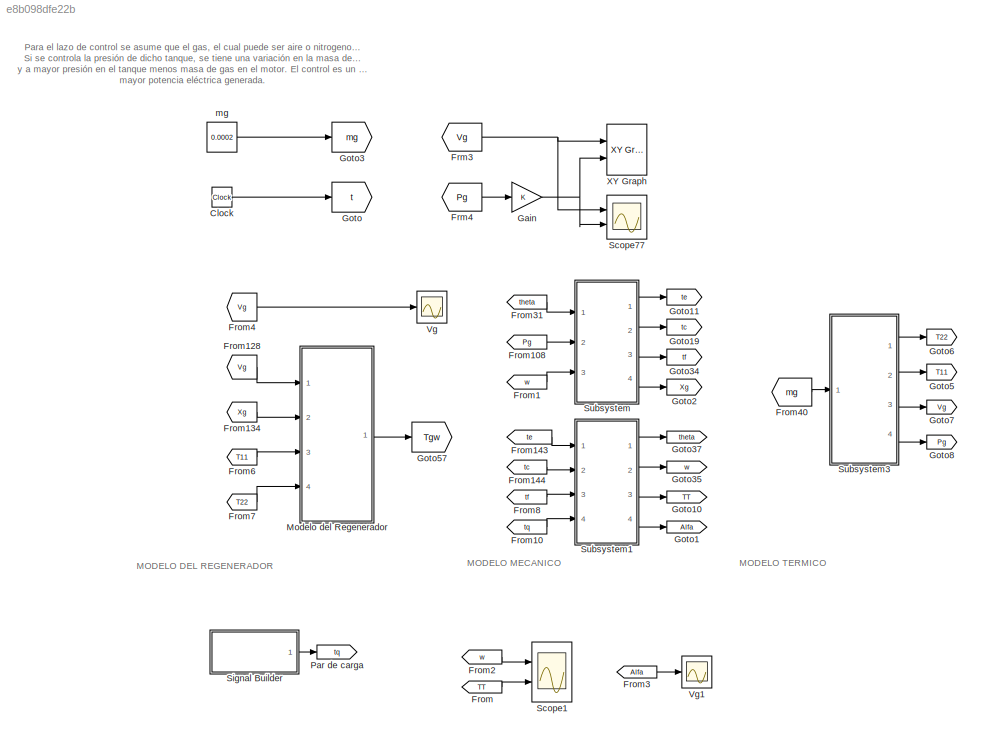
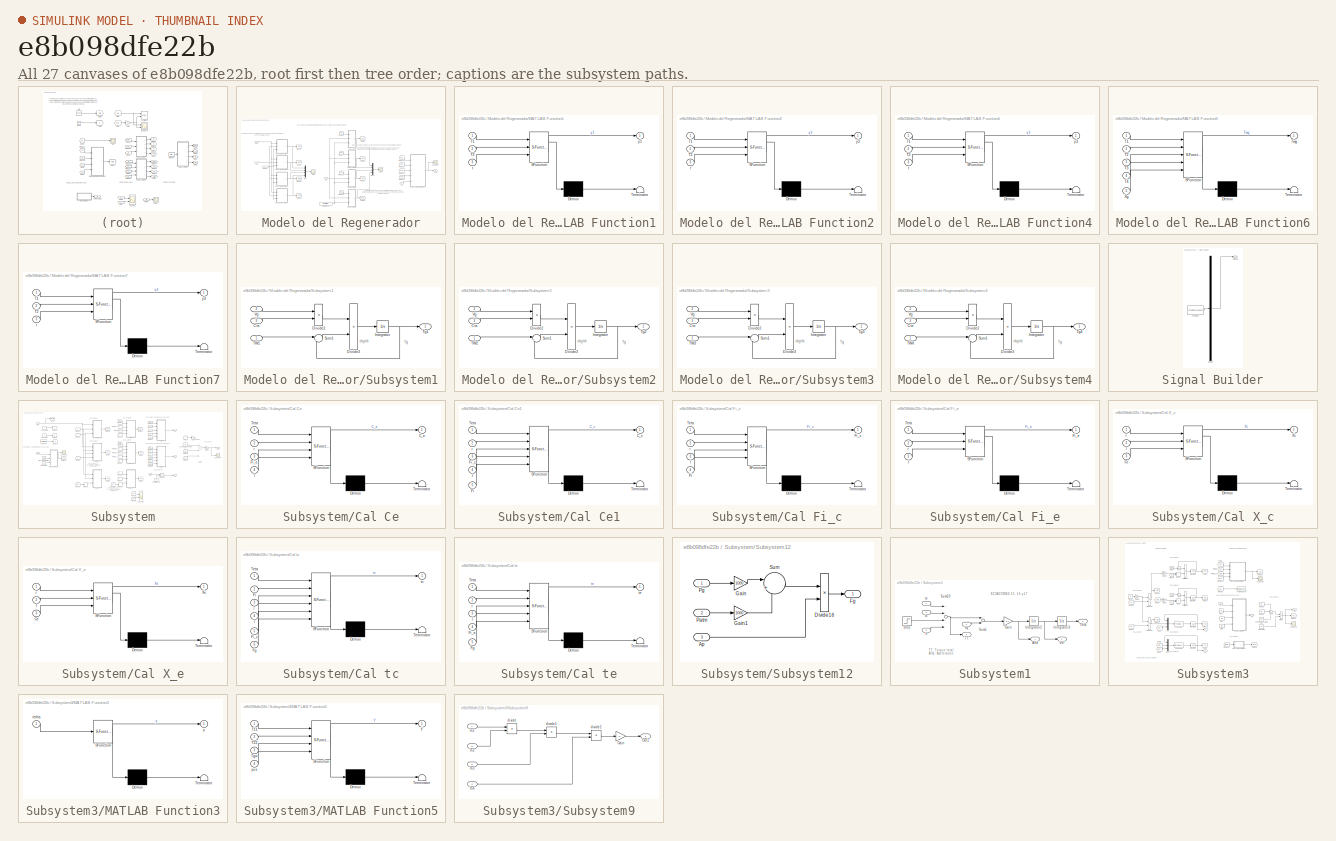
[diagram: thumbnail index - all 27 canvases of the model, root first then tree order]
MODEL slx_e8b098dfe22b
KIND model
CONFIG AbsTol = auto
CONFIG EnableMultiTasking = off
CONFIG FixedStep = auto
CONFIG MaxStep = 1e-4
CONFIG MinStep = auto
CONFIG RelTol = 1e-3
CONFIG SampleTimeConstraint = Unconstrained
CONFIG Solver = ode45
CONFIG SolverName = ode45
CONFIG StartTime = 0.0
CONFIG StopTime = 100
BLOCK [Clock] Clock
BLOCK [From] Frm3
  GotoTag = Vg
BLOCK [From] Frm4
  GotoTag = Pg
BLOCK [From] From
  GotoTag = TT
BLOCK [From] From1
  GotoTag = w
BLOCK [From] From10
  GotoTag = tq
BLOCK [From] From108
  GotoTag = Pg
BLOCK [From] From128
  GotoTag = Vg
BLOCK [From] From134
  GotoTag = Xg
  TagVisibility = global
BLOCK [From] From143
  GotoTag = te
BLOCK [From] From144
  GotoTag = tc
BLOCK [From] From2
  GotoTag = w
BLOCK [From] From3
  GotoTag = Alfa
BLOCK [From] From31
  GotoTag = theta
  TagVisibility = global
BLOCK [From] From4
  GotoTag = Vg
BLOCK [From] From40
  GotoTag = mg
BLOCK [From] From6
  GotoTag = T11
BLOCK [From] From7
  GotoTag = T22
BLOCK [From] From8
  GotoTag = tf
BLOCK [Gain] Gain
  OutDataTypeStr = Inherit: Inherit via internal rule
  ParamDataTypeStr = Inherit: Inherit via internal rule
  SaturateOnIntegerOverflow = off
BLOCK [Goto] Goto
  GotoTag = t
  TagVisibility = global
BLOCK [Goto] Goto1
  GotoTag = Alfa
BLOCK [Goto] Goto10
  GotoTag = TT
BLOCK [Goto] Goto11
  GotoTag = te
BLOCK [Goto] Goto19
  GotoTag = tc
BLOCK [Goto] Goto2
  GotoTag = Xg
  TagVisibility = global
BLOCK [Goto] Goto3
  GotoTag = mg
BLOCK [Goto] Goto34
  GotoTag = tf
BLOCK [Goto] Goto35
  GotoTag = w
BLOCK [Goto] Goto37
  GotoTag = theta
  TagVisibility = global
BLOCK [Goto] Goto5
  GotoTag = T11
BLOCK [Goto] Goto57
  GotoTag = Tgw
  TagVisibility = global
BLOCK [Goto] Goto6
  GotoTag = T22
BLOCK [Goto] Goto7
  GotoTag = Vg
BLOCK [Goto] Goto8
  GotoTag = Pg
BLOCK [SubSystem] Modelo del Regenerador
  Ports = [4, 1]
  RequestExecContextInheritance = off
BLOCK [Constant] Modelo del Regenerador/(h*A)//(dg*cpg)
  Value = (h*Awr)/(dg*cpg)
BLOCK [From] Modelo del Regenerador/From11
  GotoTag = t
  TagVisibility = global
BLOCK [From] Modelo del Regenerador/From127
  GotoTag = TW2
BLOCK [From] Modelo del Regenerador/From130
  GotoTag = TW3
BLOCK [From] Modelo del Regenerador/From131
  GotoTag = Tg1
BLOCK [From] Modelo del Regenerador/From132
  GotoTag = Tg2
BLOCK [From] Modelo del Regenerador/From133
  GotoTag = Tg3
BLOCK [From] Modelo del Regenerador/From140
  GotoTag = TW4
BLOCK [From] Modelo del Regenerador/From141
  GotoTag = Tg4
BLOCK [From] Modelo del Regenerador/From15
  GotoTag = TW1
BLOCK [Goto] Modelo del Regenerador/Goto49
  GotoTag = TW1
BLOCK [Goto] Modelo del Regenerador/Goto5
  GotoTag = TW2
BLOCK [Goto] Modelo del Regenerador/Goto54
  GotoTag = TW3
BLOCK [Goto] Modelo del Regenerador/Goto55
  GotoTag = Tg2
BLOCK [Goto] Modelo del Regenerador/Goto56
  GotoTag = Tg3
BLOCK [Goto] Modelo del Regenerador/Goto58
  GotoTag = TW4
BLOCK [Goto] Modelo del Regenerador/Goto59
  GotoTag = Tg4
BLOCK [Goto] Modelo del Regenerador/Goto9
  GotoTag = Tg1
BLOCK [SubSystem] Modelo del Regenerador/MATLAB Function1
  ErrorFcn = Stateflow.Translate.translate
  PermitHierarchicalResolution = ExplicitOnly
  Ports = [3, 1]
  RequestExecContextInheritance = off
  SFBlockType = MATLAB Function
  TreatAsAtomicUnit = on
BLOCK [Demux] Modelo del Regenerador/MATLAB Function1/ Demux 
  Outputs = 1
  Ports = [1, 1]
BLOCK [S-Function] Modelo del Regenerador/MATLAB Function1/ SFunction 
  EnableBusSupport = on
  FunctionName = sf_sfun
  PortCounts = [3 2]
  Ports = [3, 2]
  SFcnIsStateOwnerBlock = off
  SFunctionDeploymentMode = off
  Tag = Stateflow S-Function ModelKevin_Felipe_01 1
BLOCK [Terminator] Modelo del Regenerador/MATLAB Function1/ Terminator 
BLOCK [Inport] Modelo del Regenerador/MATLAB Function1/T1
  IconDisplay = Port number
BLOCK [Inport] Modelo del Regenerador/MATLAB Function1/T2
  IconDisplay = Port number
  Port = 2
BLOCK [Inport] Modelo del Regenerador/MATLAB Function1/t
  IconDisplay = Port number
  Port = 3
BLOCK [Outport] Modelo del Regenerador/MATLAB Function1/y1
  IconDisplay = Port number
BLOCK [SubSystem] Modelo del Regenerador/MATLAB Function2
  ErrorFcn = Stateflow.Translate.translate
  PermitHierarchicalResolution = ExplicitOnly
  Ports = [3, 1]
  RequestExecContextInheritance = off
  SFBlockType = MATLAB Function
  TreatAsAtomicUnit = on
BLOCK [Demux] Modelo del Regenerador/MATLAB Function2/ Demux 
  Outputs = 1
  Ports = [1, 1]
BLOCK [S-Function] Modelo del Regenerador/MATLAB Function2/ SFunction 
  EnableBusSupport = on
  FunctionName = sf_sfun
  PortCounts = [3 2]
  Ports = [3, 2]
  SFcnIsStateOwnerBlock = off
  SFunctionDeploymentMode = off
  Tag = Stateflow S-Function ModelKevin_Felipe_01 3
BLOCK [Terminator] Modelo del Regenerador/MATLAB Function2/ Terminator 
BLOCK [Inport] Modelo del Regenerador/MATLAB Function2/T1
  IconDisplay = Port number
BLOCK [Inport] Modelo del Regenerador/MATLAB Function2/T2
  IconDisplay = Port number
  Port = 2
BLOCK [Inport] Modelo del Regenerador/MATLAB Function2/t
  IconDisplay = Port number
  Port = 3
BLOCK [Outport] Modelo del Regenerador/MATLAB Function2/y2
  IconDisplay = Port number
BLOCK [SubSystem] Modelo del Regenerador/MATLAB Function4
  ErrorFcn = Stateflow.Translate.translate
  PermitHierarchicalResolution = ExplicitOnly
  Ports = [3, 1]
  RequestExecContextInheritance = off
  SFBlockType = MATLAB Function
  TreatAsAtomicUnit = on
BLOCK [Demux] Modelo del Regenerador/MATLAB Function4/ Demux 
  Outputs = 1
  Ports = [1, 1]
BLOCK [S-Function] Modelo del Regenerador/MATLAB Function4/ SFunction 
  EnableBusSupport = on
  FunctionName = sf_sfun
  PortCounts = [3 2]
  Ports = [3, 2]
  SFcnIsStateOwnerBlock = off
  SFunctionDeploymentMode = off
  Tag = Stateflow S-Function ModelKevin_Felipe_01 5
BLOCK [Terminator] Modelo del Regenerador/MATLAB Function4/ Terminator 
BLOCK [Inport] Modelo del Regenerador/MATLAB Function4/T1
  IconDisplay = Port number
BLOCK [Inport] Modelo del Regenerador/MATLAB Function4/T2
  IconDisplay = Port number
  Port = 2
BLOCK [Inport] Modelo del Regenerador/MATLAB Function4/t
  IconDisplay = Port number
  Port = 3
BLOCK [Outport] Modelo del Regenerador/MATLAB Function4/y3
  IconDisplay = Port number
BLOCK [SubSystem] Modelo del Regenerador/MATLAB Function6
  ErrorFcn = Stateflow.Translate.translate
  PermitHierarchicalResolution = ExplicitOnly
  Ports = [5, 1]
  RequestExecContextInheritance = off
  SFBlockType = MATLAB Function
  TreatAsAtomicUnit = on
BLOCK [Demux] Modelo del Regenerador/MATLAB Function6/ Demux 
  Outputs = 1
  Ports = [1, 1]
BLOCK [S-Function] Modelo del Regenerador/MATLAB Function6/ SFunction 
  EnableBusSupport = on
  FunctionName = sf_sfun
  PortCounts = [5 2]
  Ports = [5, 2]
  SFcnIsStateOwnerBlock = off
  SFunctionDeploymentMode = off
  Tag = Stateflow S-Function ModelKevin_Felipe_01 6
BLOCK [Terminator] Modelo del Regenerador/MATLAB Function6/ Terminator 
BLOCK [Inport] Modelo del Regenerador/MATLAB Function6/T1
  IconDisplay = Port number
BLOCK [Inport] Modelo del Regenerador/MATLAB Function6/T2
  IconDisplay = Port number
  Port = 2
BLOCK [Inport] Modelo del Regenerador/MATLAB Function6/T3
  IconDisplay = Port number
  Port = 3
BLOCK [Inport] Modelo del Regenerador/MATLAB Function6/T4
  IconDisplay = Port number
  Port = 4
BLOCK [Outport] Modelo del Regenerador/MATLAB Function6/Twg
  IconDisplay = Port number
BLOCK [Inport] Modelo del Regenerador/MATLAB Function6/Xg
  IconDisplay = Port number
  Port = 5
BLOCK [SubSystem] Modelo del Regenerador/MATLAB Function7
  ErrorFcn = Stateflow.Translate.translate
  PermitHierarchicalResolution = ExplicitOnly
  Ports = [3, 1]
  RequestExecContextInheritance = off
  SFBlockType = MATLAB Function
  TreatAsAtomicUnit = on
BLOCK [Demux] Modelo del Regenerador/MATLAB Function7/ Demux 
  Outputs = 1
  Ports = [1, 1]
BLOCK [S-Function] Modelo del Regenerador/MATLAB Function7/ SFunction 
  EnableBusSupport = on
  FunctionName = sf_sfun
  PortCounts = [3 2]
  Ports = [3, 2]
  SFcnIsStateOwnerBlock = off
  SFunctionDeploymentMode = off
  Tag = Stateflow S-Function ModelKevin_Felipe_01 7
BLOCK [Terminator] Modelo del Regenerador/MATLAB Function7/ Terminator 
BLOCK [Inport] Modelo del Regenerador/MATLAB Function7/T1
  IconDisplay = Port number
BLOCK [Inport] Modelo del Regenerador/MATLAB Function7/T2
  IconDisplay = Port number
  Port = 2
BLOCK [Inport] Modelo del Regenerador/MATLAB Function7/t
  IconDisplay = Port number
  Port = 3
BLOCK [Outport] Modelo del Regenerador/MATLAB Function7/y4
  IconDisplay = Port number
BLOCK [Mux] Modelo del Regenerador/Mux
  DisplayOption = bar
  Ports = [4, 1]
BLOCK [Mux] Modelo del Regenerador/Mux1
  DisplayOption = bar
  Ports = [4, 1]
BLOCK [Scope] Modelo del Regenerador/Scope87
  Floating = off
  NumInputPorts = 1
  Ports = [1]
  ScopeSpecificationString = Simulink.scopes.TimeScopeBlockCfg('CurrentConfiguration', extmgr.ConfigurationSet(extmgr.Configuration('Core','General UI',true,'FigureColor',[0.156862745098039 0.156862745098039 0.156862745098039]),extmgr.Configuration('Core','Source UI',true),extmgr.Configuration('Sources','WiredSimulink',true,'DataLoggingVariableName','ScopeData2','DataLoggingSaveFormat','StructureWithTime','DataLoggingDecimati...<+2737ch>
BLOCK [SubSystem] Modelo del Regenerador/Subsystem1
  Ports = [3, 1]
  RequestExecContextInheritance = off
BLOCK [Inport] Modelo del Regenerador/Subsystem1/Cte
  IconDisplay = Port number
  Port = 3
BLOCK [Product] Modelo del Regenerador/Subsystem1/Divide2
  InputSameDT = off
  Inputs = /*
  OutDataTypeStr = Inherit: Inherit via internal rule
  Ports = [2, 1]
  RndMeth = Floor
  SaturateOnIntegerOverflow = off
BLOCK [Product] Modelo del Regenerador/Subsystem1/Divide3
  InputSameDT = off
  Inputs = **
  OutDataTypeStr = Inherit: Inherit via internal rule
  Ports = [2, 1]
  RndMeth = Floor
  SaturateOnIntegerOverflow = off
BLOCK [Integrator] Modelo del Regenerador/Subsystem1/Integrator
  Ports = [1, 1]
BLOCK [Sum] Modelo del Regenerador/Subsystem1/Sum1
  IconShape = round
  InputSameDT = off
  Inputs = |+-
  OutDataTypeStr = Inherit: Inherit via internal rule
  Ports = [2, 1]
  SaturateOnIntegerOverflow = off
BLOCK [Inport] Modelo del Regenerador/Subsystem1/TW1
  IconDisplay = Port number
BLOCK [Outport] Modelo del Regenerador/Subsystem1/Tg1
  IconDisplay = Port number
BLOCK [Inport] Modelo del Regenerador/Subsystem1/Vg
  IconDisplay = Port number
  Port = 2
BLOCK [SubSystem] Modelo del Regenerador/Subsystem2
  Ports = [3, 1]
  RequestExecContextInheritance = off
BLOCK [Inport] Modelo del Regenerador/Subsystem2/Cte
  IconDisplay = Port number
  Port = 3
BLOCK [Product] Modelo del Regenerador/Subsystem2/Divide2
  InputSameDT = off
  Inputs = /*
  OutDataTypeStr = Inherit: Inherit via internal rule
  Ports = [2, 1]
  RndMeth = Floor
  SaturateOnIntegerOverflow = off
BLOCK [Product] Modelo del Regenerador/Subsystem2/Divide3
  InputSameDT = off
  Inputs = **
  OutDataTypeStr = Inherit: Inherit via internal rule
  Ports = [2, 1]
  RndMeth = Floor
  SaturateOnIntegerOverflow = off
BLOCK [Integrator] Modelo del Regenerador/Subsystem2/Integrator
  Ports = [1, 1]
BLOCK [Sum] Modelo del Regenerador/Subsystem2/Sum1
  IconShape = round
  InputSameDT = off
  Inputs = |+-
  OutDataTypeStr = Inherit: Inherit via internal rule
  Ports = [2, 1]
  SaturateOnIntegerOverflow = off
BLOCK [Inport] Modelo del Regenerador/Subsystem2/TW2
  IconDisplay = Port number
BLOCK [Outport] Modelo del Regenerador/Subsystem2/Tg2
  IconDisplay = Port number
BLOCK [Inport] Modelo del Regenerador/Subsystem2/Vg
  IconDisplay = Port number
  Port = 2
BLOCK [SubSystem] Modelo del Regenerador/Subsystem3
  Ports = [3, 1]
  RequestExecContextInheritance = off
BLOCK [Inport] Modelo del Regenerador/Subsystem3/Cte
  IconDisplay = Port number
  Port = 3
BLOCK [Product] Modelo del Regenerador/Subsystem3/Divide2
  InputSameDT = off
  Inputs = /*
  OutDataTypeStr = Inherit: Inherit via internal rule
  Ports = [2, 1]
  RndMeth = Floor
  SaturateOnIntegerOverflow = off
BLOCK [Product] Modelo del Regenerador/Subsystem3/Divide3
  InputSameDT = off
  Inputs = **
  OutDataTypeStr = Inherit: Inherit via internal rule
  Ports = [2, 1]
  RndMeth = Floor
  SaturateOnIntegerOverflow = off
BLOCK [Integrator] Modelo del Regenerador/Subsystem3/Integrator
  Ports = [1, 1]
BLOCK [Sum] Modelo del Regenerador/Subsystem3/Sum1
  IconShape = round
  InputSameDT = off
  Inputs = |+-
  OutDataTypeStr = Inherit: Inherit via internal rule
  Ports = [2, 1]
  SaturateOnIntegerOverflow = off
BLOCK [Inport] Modelo del Regenerador/Subsystem3/TW3
  IconDisplay = Port number
BLOCK [Outport] Modelo del Regenerador/Subsystem3/Tg3
  IconDisplay = Port number
BLOCK [Inport] Modelo del Regenerador/Subsystem3/Vg
  IconDisplay = Port number
  Port = 2
BLOCK [SubSystem] Modelo del Regenerador/Subsystem4
  Ports = [3, 1]
  RequestExecContextInheritance = off
BLOCK [Inport] Modelo del Regenerador/Subsystem4/Cte
  IconDisplay = Port number
  Port = 3
BLOCK [Product] Modelo del Regenerador/Subsystem4/Divide2
  InputSameDT = off
  Inputs = /*
  OutDataTypeStr = Inherit: Inherit via internal rule
  Ports = [2, 1]
  RndMeth = Floor
  SaturateOnIntegerOverflow = off
BLOCK [Product] Modelo del Regenerador/Subsystem4/Divide3
  InputSameDT = off
  Inputs = **
  OutDataTypeStr = Inherit: Inherit via internal rule
  Ports = [2, 1]
  RndMeth = Floor
  SaturateOnIntegerOverflow = off
BLOCK [Integrator] Modelo del Regenerador/Subsystem4/Integrator
  Ports = [1, 1]
BLOCK [Sum] Modelo del Regenerador/Subsystem4/Sum1
  IconShape = round
  InputSameDT = off
  Inputs = |+-
  OutDataTypeStr = Inherit: Inherit via internal rule
  Ports = [2, 1]
  SaturateOnIntegerOverflow = off
BLOCK [Inport] Modelo del Regenerador/Subsystem4/TW4
  IconDisplay = Port number
BLOCK [Outport] Modelo del Regenerador/Subsystem4/Tg4
  IconDisplay = Port number
BLOCK [Inport] Modelo del Regenerador/Subsystem4/Vg
  IconDisplay = Port number
  Port = 2
BLOCK [Inport] Modelo del Regenerador/T11
  IconDisplay = Port number
  Port = 3
BLOCK [Inport] Modelo del Regenerador/T22
  IconDisplay = Port number
  Port = 4
BLOCK [Scope] Modelo del Regenerador/TWn
  Floating = off
  NumInputPorts = 1
  Ports = [1]
  ScopeSpecificationString = Simulink.scopes.TimeScopeBlockCfg('CurrentConfiguration', extmgr.ConfigurationSet(extmgr.Configuration('Core','General UI',true,'FigureColor',[0.156862745098039 0.156862745098039 0.156862745098039]),extmgr.Configuration('Core','Source UI',true),extmgr.Configuration('Sources','WiredSimulink',true,'DataLoggingVariableName','ScopeData2','DataLoggingSaveFormat','StructureWithTime','DataLoggingDecimati...<+2733ch>
BLOCK [Scope] Modelo del Regenerador/Tgn
  Floating = off
  NumInputPorts = 1
  Ports = [1]
  ScopeSpecificationString = Simulink.scopes.TimeScopeBlockCfg('CurrentConfiguration', extmgr.ConfigurationSet(extmgr.Configuration('Core','General UI',true,'FigureColor',[0.156862745098039 0.156862745098039 0.156862745098039]),extmgr.Configuration('Core','Source UI',true),extmgr.Configuration('Sources','WiredSimulink',true,'DataLoggingVariableName','ScopeData1','DataLoggingSaveFormat','StructureWithTime','DataLoggingDecimati...<+2733ch>
BLOCK [Outport] Modelo del Regenerador/Tgw
  IconDisplay = Port number
BLOCK [Inport] Modelo del Regenerador/Vg
  IconDisplay = Port number
BLOCK [Inport] Modelo del Regenerador/Xg
  IconDisplay = Port number
  Port = 2
BLOCK [Goto] Par de carga
  GotoTag = tq
BLOCK [Scope] Scope1
  Floating = off
  NumInputPorts = 2
  Ports = [2]
  ScopeSpecificationString = Simulink.scopes.TimeScopeBlockCfg('CurrentConfiguration', extmgr.ConfigurationSet(extmgr.Configuration('Core','General UI',true,'FigureColor',[0.156862745098039 0.156862745098039 0.156862745098039]),extmgr.Configuration('Core','Source UI',true),extmgr.Configuration('Sources','WiredSimulink',true,'DataLoggingVariableName','ScopeData2','DataLoggingSaveFormat','StructureWithTime','DataLoggingDecimati...<+3955ch>
BLOCK [Scope] Scope77
  Floating = off
  NumInputPorts = 2
  Ports = [2]
  ScopeSpecificationString = Simulink.scopes.TimeScopeBlockCfg('CurrentConfiguration', extmgr.ConfigurationSet(extmgr.Configuration('Core','General UI',true,'FigureColor',[0.156862745098039 0.156862745098039 0.156862745098039]),extmgr.Configuration('Core','Source UI',true),extmgr.Configuration('Sources','WiredSimulink',true,'DataLoggingVariableName','ScopeData1','DataLoggingSaveFormat','StructureWithTime','DataLoggingDecimati...<+3988ch>
BLOCK [SubSystem] Signal Builder
  ClipboardFcn = sigbuilder_block('clipboard');
  CloseFcn = sigbuilder_block('close');
  ContinueFcn = sigbuilder_block('continue');
  CopyFcn = sigbuilder_block('copy');
  DeleteFcn = sigbuilder_block('delete');
  LoadFcn = sigbuilder_block('load');
  MaskHideContents = on
  ModelCloseFcn = sigbuilder_block('modelClose');
  NameChangeFcn = sigbuilder_block('namechange');
  OpenFcn = sigbuilder_block('open',[437.6 199.2 550.4 400 ]);
  PauseFcn = sigbuilder_block('pause');
  Ports = [0, 1]
  PreSaveFcn = sigbuilder_block('preSave');
  RequestExecContextInheritance = off
  StartFcn = sigbuilder_block('start');
  StopFcn = sigbuilder_block('stop');
  Tag = STV Subsys
BLOCK [Demux] Signal Builder/Demux
  Outputs = 1
  Ports = [1, 1]
  Tag = STV Demux
BLOCK [FromWorkspace] Signal Builder/FromWs
  SampleTime = 0
  Tag = STV FromWs
  VariableName = tuvar
  ZeroCross = on
BLOCK [Outport] Signal Builder/Signal 1
  IconDisplay = Port number
  Tag = STV Outport
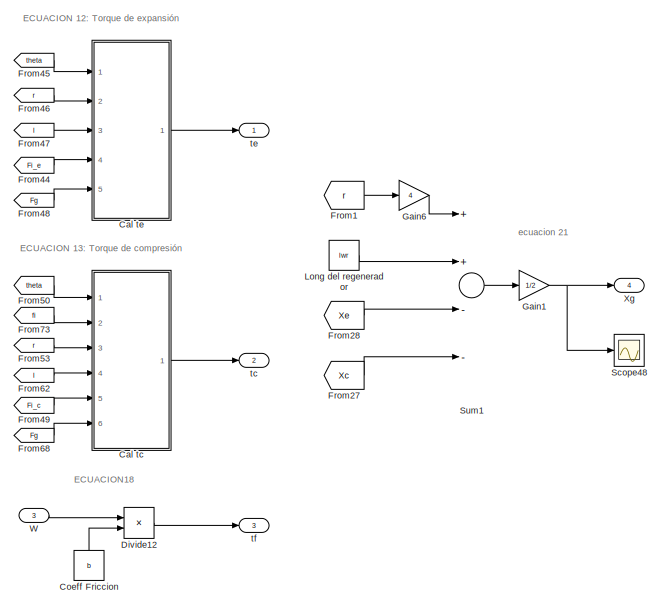
[diagram: Subsystem - part 1/2, right side, full height]
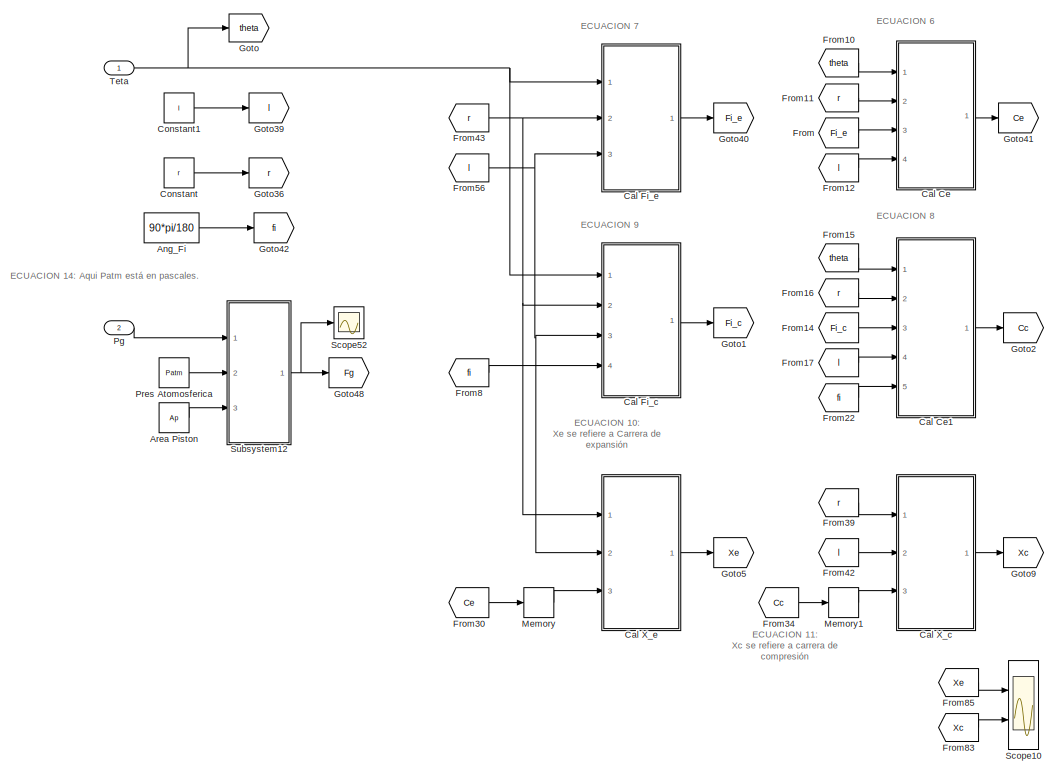
[diagram: Subsystem - part 2/2, left side, full height]
BLOCK [SubSystem] Subsystem
  Ports = [3, 4]
  RequestExecContextInheritance = off
BLOCK [Constant] Subsystem/Ang_Fi
  Value = 90*pi/180
BLOCK [Constant] Subsystem/Area Piston
  Value = Ap
BLOCK [SubSystem] Subsystem/Cal Ce
  ErrorFcn = Stateflow.Translate.translate
  PermitHierarchicalResolution = ExplicitOnly
  Ports = [4, 1]
  RequestExecContextInheritance = off
  SFBlockType = MATLAB Function
  TreatAsAtomicUnit = on
BLOCK [Demux] Subsystem/Cal Ce/ Demux 
  Outputs = 1
  Ports = [1, 1]
BLOCK [S-Function] Subsystem/Cal Ce/ SFunction 
  EnableBusSupport = on
  FunctionName = sf_sfun
  PortCounts = [4 2]
  Ports = [4, 2]
  SFcnIsStateOwnerBlock = off
  SFunctionDeploymentMode = off
  Tag = Stateflow S-Function ModelKevin_Felipe_01 10
BLOCK [Terminator] Subsystem/Cal Ce/ Terminator 
BLOCK [Outport] Subsystem/Cal Ce/C_e
  IconDisplay = Port number
BLOCK [Inport] Subsystem/Cal Ce/Fi_e
  IconDisplay = Port number
  Port = 3
BLOCK [Inport] Subsystem/Cal Ce/Teta
  IconDisplay = Port number
BLOCK [Inport] Subsystem/Cal Ce/l
  IconDisplay = Port number
  Port = 4
BLOCK [Inport] Subsystem/Cal Ce/r
  IconDisplay = Port number
  Port = 2
BLOCK [SubSystem] Subsystem/Cal Ce1
  ErrorFcn = Stateflow.Translate.translate
  PermitHierarchicalResolution = ExplicitOnly
  Ports = [5, 1]
  RequestExecContextInheritance = off
  SFBlockType = MATLAB Function
  TreatAsAtomicUnit = on
BLOCK [Demux] Subsystem/Cal Ce1/ Demux 
  Outputs = 1
  Ports = [1, 1]
BLOCK [S-Function] Subsystem/Cal Ce1/ SFunction 
  EnableBusSupport = on
  FunctionName = sf_sfun
  PortCounts = [5 2]
  Ports = [5, 2]
  SFcnIsStateOwnerBlock = off
  SFunctionDeploymentMode = off
  Tag = Stateflow S-Function ModelKevin_Felipe_01 11
BLOCK [Terminator] Subsystem/Cal Ce1/ Terminator 
BLOCK [Outport] Subsystem/Cal Ce1/C_c
  IconDisplay = Port number
BLOCK [Inport] Subsystem/Cal Ce1/Fi
  IconDisplay = Port number
  Port = 5
BLOCK [Inport] Subsystem/Cal Ce1/Fi_c
  IconDisplay = Port number
  Port = 3
BLOCK [Inport] Subsystem/Cal Ce1/Teta
  IconDisplay = Port number
BLOCK [Inport] Subsystem/Cal Ce1/l
  IconDisplay = Port number
  Port = 4
BLOCK [Inport] Subsystem/Cal Ce1/r
  IconDisplay = Port number
  Port = 2
BLOCK [SubSystem] Subsystem/Cal Fi_c
  ErrorFcn = Stateflow.Translate.translate
  PermitHierarchicalResolution = ExplicitOnly
  Ports = [4, 1]
  RequestExecContextInheritance = off
  SFBlockType = MATLAB Function
  TreatAsAtomicUnit = on
BLOCK [Demux] Subsystem/Cal Fi_c/ Demux 
  Outputs = 1
  Ports = [1, 1]
BLOCK [S-Function] Subsystem/Cal Fi_c/ SFunction 
  EnableBusSupport = on
  FunctionName = sf_sfun
  PortCounts = [4 2]
  Ports = [4, 2]
  SFcnIsStateOwnerBlock = off
  SFunctionDeploymentMode = off
  Tag = Stateflow S-Function ModelKevin_Felipe_01 9
BLOCK [Terminator] Subsystem/Cal Fi_c/ Terminator 
BLOCK [Inport] Subsystem/Cal Fi_c/Fi
  IconDisplay = Port number
  Port = 4
BLOCK [Outport] Subsystem/Cal Fi_c/Fi_c
  IconDisplay = Port number
BLOCK [Inport] Subsystem/Cal Fi_c/Teta
  IconDisplay = Port number
BLOCK [Inport] Subsystem/Cal Fi_c/l
  IconDisplay = Port number
  Port = 3
BLOCK [Inport] Subsystem/Cal Fi_c/r
  IconDisplay = Port number
  Port = 2
BLOCK [SubSystem] Subsystem/Cal Fi_e
  ErrorFcn = Stateflow.Translate.translate
  PermitHierarchicalResolution = ExplicitOnly
  Ports = [3, 1]
  RequestExecContextInheritance = off
  SFBlockType = MATLAB Function
  TreatAsAtomicUnit = on
BLOCK [Demux] Subsystem/Cal Fi_e/ Demux 
  Outputs = 1
  Ports = [1, 1]
BLOCK [S-Function] Subsystem/Cal Fi_e/ SFunction 
  EnableBusSupport = on
  FunctionName = sf_sfun
  PortCounts = [3 2]
  Ports = [3, 2]
  SFcnIsStateOwnerBlock = off
  SFunctionDeploymentMode = off
  Tag = Stateflow S-Function ModelKevin_Felipe_01 8
BLOCK [Terminator] Subsystem/Cal Fi_e/ Terminator 
BLOCK [Outport] Subsystem/Cal Fi_e/Fi_e
  IconDisplay = Port number
BLOCK [Inport] Subsystem/Cal Fi_e/Teta
  IconDisplay = Port number
BLOCK [Inport] Subsystem/Cal Fi_e/l
  IconDisplay = Port number
  Port = 3
BLOCK [Inport] Subsystem/Cal Fi_e/r
  IconDisplay = Port number
  Port = 2
BLOCK [SubSystem] Subsystem/Cal X_c
  ErrorFcn = Stateflow.Translate.translate
  PermitHierarchicalResolution = ExplicitOnly
  Ports = [3, 1]
  RequestExecContextInheritance = off
  SFBlockType = MATLAB Function
  TreatAsAtomicUnit = on
BLOCK [Demux] Subsystem/Cal X_c/ Demux 
  Outputs = 1
  Ports = [1, 1]
BLOCK [S-Function] Subsystem/Cal X_c/ SFunction 
  EnableBusSupport = on
  FunctionName = sf_sfun
  PortCounts = [3 2]
  Ports = [3, 2]
  SFcnIsStateOwnerBlock = off
  SFunctionDeploymentMode = off
  Tag = Stateflow S-Function ModelKevin_Felipe_01 13
BLOCK [Terminator] Subsystem/Cal X_c/ Terminator 
BLOCK [Inport] Subsystem/Cal X_c/Cc
  IconDisplay = Port number
  Port = 3
BLOCK [Outport] Subsystem/Cal X_c/Xc
  IconDisplay = Port number
BLOCK [Inport] Subsystem/Cal X_c/l
  IconDisplay = Port number
  Port = 2
BLOCK [Inport] Subsystem/Cal X_c/r
  IconDisplay = Port number
BLOCK [SubSystem] Subsystem/Cal X_e
  ErrorFcn = Stateflow.Translate.translate
  PermitHierarchicalResolution = ExplicitOnly
  Ports = [3, 1]
  RequestExecContextInheritance = off
  SFBlockType = MATLAB Function
  TreatAsAtomicUnit = on
BLOCK [Demux] Subsystem/Cal X_e/ Demux 
  Outputs = 1
  Ports = [1, 1]
BLOCK [S-Function] Subsystem/Cal X_e/ SFunction 
  EnableBusSupport = on
  FunctionName = sf_sfun
  PortCounts = [3 2]
  Ports = [3, 2]
  SFcnIsStateOwnerBlock = off
  SFunctionDeploymentMode = off
  Tag = Stateflow S-Function ModelKevin_Felipe_01 12
BLOCK [Terminator] Subsystem/Cal X_e/ Terminator 
BLOCK [Inport] Subsystem/Cal X_e/Ce
  IconDisplay = Port number
  Port = 3
BLOCK [Outport] Subsystem/Cal X_e/Xe
  IconDisplay = Port number
BLOCK [Inport] Subsystem/Cal X_e/l
  IconDisplay = Port number
  Port = 2
BLOCK [Inport] Subsystem/Cal X_e/r
  IconDisplay = Port number
BLOCK [SubSystem] Subsystem/Cal tc
  ErrorFcn = Stateflow.Translate.translate
  PermitHierarchicalResolution = ExplicitOnly
  Ports = [6, 1]
  RequestExecContextInheritance = off
  SFBlockType = MATLAB Function
  TreatAsAtomicUnit = on
BLOCK [Demux] Subsystem/Cal tc/ Demux 
  Outputs = 1
  Ports = [1, 1]
BLOCK [S-Function] Subsystem/Cal tc/ SFunction 
  EnableBusSupport = on
  FunctionName = sf_sfun
  PortCounts = [6 2]
  Ports = [6, 2]
  SFcnIsStateOwnerBlock = off
  SFunctionDeploymentMode = off
  Tag = Stateflow S-Function ModelKevin_Felipe_01 15
BLOCK [Terminator] Subsystem/Cal tc/ Terminator 
BLOCK [Inport] Subsystem/Cal tc/Fg
  IconDisplay = Port number
  Port = 6
BLOCK [Inport] Subsystem/Cal tc/Fi
  IconDisplay = Port number
  Port = 2
BLOCK [Inport] Subsystem/Cal tc/Fi_c
  IconDisplay = Port number
  Port = 5
BLOCK [Inport] Subsystem/Cal tc/Teta
  IconDisplay = Port number
BLOCK [Inport] Subsystem/Cal tc/l
  IconDisplay = Port number
  Port = 4
BLOCK [Inport] Subsystem/Cal tc/r
  IconDisplay = Port number
  Port = 3
BLOCK [Outport] Subsystem/Cal tc/tc
  IconDisplay = Port number
BLOCK [SubSystem] Subsystem/Cal te
  ErrorFcn = Stateflow.Translate.translate
  PermitHierarchicalResolution = ExplicitOnly
  Ports = [5, 1]
  RequestExecContextInheritance = off
  SFBlockType = MATLAB Function
  TreatAsAtomicUnit = on
BLOCK [Demux] Subsystem/Cal te/ Demux 
  Outputs = 1
  Ports = [1, 1]
BLOCK [S-Function] Subsystem/Cal te/ SFunction 
  EnableBusSupport = on
  FunctionName = sf_sfun
  PortCounts = [5 2]
  Ports = [5, 2]
  SFcnIsStateOwnerBlock = off
  SFunctionDeploymentMode = off
  Tag = Stateflow S-Function ModelKevin_Felipe_01 14
BLOCK [Terminator] Subsystem/Cal te/ Terminator 
BLOCK [Inport] Subsystem/Cal te/Fg
  IconDisplay = Port number
  Port = 5
BLOCK [Inport] Subsystem/Cal te/Fi_e
  IconDisplay = Port number
  Port = 4
BLOCK [Inport] Subsystem/Cal te/Teta
  IconDisplay = Port number
BLOCK [Inport] Subsystem/Cal te/l
  IconDisplay = Port number
  Port = 3
BLOCK [Inport] Subsystem/Cal te/r
  IconDisplay = Port number
  Port = 2
BLOCK [Outport] Subsystem/Cal te/te
  IconDisplay = Port number
BLOCK [Constant] Subsystem/Coeff Friccion
  Value = b
BLOCK [Constant] Subsystem/Constant
  Value = r
BLOCK [Constant] Subsystem/Constant1
  Value = l
BLOCK [Product] Subsystem/Divide12
  InputSameDT = off
  Inputs = **
  OutDataTypeStr = Inherit: Inherit via internal rule
  Ports = [2, 1]
  RndMeth = Floor
  SaturateOnIntegerOverflow = off
BLOCK [From] Subsystem/From
  GotoTag = Fi_e
BLOCK [From] Subsystem/From1
  GotoTag = r
BLOCK [From] Subsystem/From10
  GotoTag = theta
BLOCK [From] Subsystem/From11
  GotoTag = r
BLOCK [From] Subsystem/From12
  GotoTag = l
BLOCK [From] Subsystem/From14
  GotoTag = Fi_c
BLOCK [From] Subsystem/From15
  GotoTag = theta
BLOCK [From] Subsystem/From16
  GotoTag = r
BLOCK [From] Subsystem/From17
  GotoTag = l
BLOCK [From] Subsystem/From22
  GotoTag = fi
BLOCK [From] Subsystem/From27
  GotoTag = Xc
  TagVisibility = global
BLOCK [From] Subsystem/From28
  GotoTag = Xe
  TagVisibility = global
BLOCK [From] Subsystem/From30
  GotoTag = Ce
BLOCK [From] Subsystem/From34
  GotoTag = Cc
BLOCK [From] Subsystem/From39
  GotoTag = r
BLOCK [From] Subsystem/From42
  GotoTag = l
BLOCK [From] Subsystem/From43
  GotoTag = r
BLOCK [From] Subsystem/From44
  GotoTag = Fi_e
BLOCK [From] Subsystem/From45
  GotoTag = theta
BLOCK [From] Subsystem/From46
  GotoTag = r
BLOCK [From] Subsystem/From47
  GotoTag = l
BLOCK [From] Subsystem/From48
  GotoTag = Fg
BLOCK [From] Subsystem/From49
  GotoTag = Fi_c
BLOCK [From] Subsystem/From50
  GotoTag = theta
BLOCK [From] Subsystem/From53
  GotoTag = r
BLOCK [From] Subsystem/From56
  GotoTag = l
BLOCK [From] Subsystem/From62
  GotoTag = l
BLOCK [From] Subsystem/From68
  GotoTag = Fg
BLOCK [From] Subsystem/From73
  GotoTag = fi
BLOCK [From] Subsystem/From8
  GotoTag = fi
BLOCK [From] Subsystem/From83
  GotoTag = Xc
  TagVisibility = global
BLOCK [From] Subsystem/From85
  GotoTag = Xe
  TagVisibility = global
BLOCK [Gain] Subsystem/Gain1
  Gain = 1/2
  OutDataTypeStr = Inherit: Inherit via internal rule
  ParamDataTypeStr = Inherit: Inherit via internal rule
  SaturateOnIntegerOverflow = off
BLOCK [Gain] Subsystem/Gain6
  Gain = 4
  OutDataTypeStr = Inherit: Inherit via internal rule
  ParamDataTypeStr = Inherit: Inherit via internal rule
  SaturateOnIntegerOverflow = off
BLOCK [Goto] Subsystem/Goto
  GotoTag = theta
BLOCK [Goto] Subsystem/Goto1
  GotoTag = Fi_c
BLOCK [Goto] Subsystem/Goto2
  GotoTag = Cc
BLOCK [Goto] Subsystem/Goto36
  GotoTag = r
BLOCK [Goto] Subsystem/Goto39
  GotoTag = l
BLOCK [Goto] Subsystem/Goto40
  GotoTag = Fi_e
BLOCK [Goto] Subsystem/Goto41
  GotoTag = Ce
BLOCK [Goto] Subsystem/Goto42
  GotoTag = fi
BLOCK [Goto] Subsystem/Goto48
  GotoTag = Fg
BLOCK [Goto] Subsystem/Goto5
  GotoTag = Xe
  TagVisibility = global
BLOCK [Goto] Subsystem/Goto9
  GotoTag = Xc
  TagVisibility = global
BLOCK [Constant] Subsystem/Long del regenerador
  Value = lwr
BLOCK [Memory] Subsystem/Memory
BLOCK [Memory] Subsystem/Memory1
BLOCK [Inport] Subsystem/Pg
  IconDisplay = Port number
  Port = 2
BLOCK [Constant] Subsystem/Pres Atomosferica
  Value = Patm
BLOCK [Scope] Subsystem/Scope10
  Floating = off
  NumInputPorts = 2
  Ports = [2]
  ScopeSpecificationString = Simulink.scopes.TimeScopeBlockCfg('CurrentConfiguration', extmgr.ConfigurationSet(extmgr.Configuration('Core','General UI',true,'FigureColor',[0.156862745098039 0.156862745098039 0.156862745098039]),extmgr.Configuration('Core','Source UI',true),extmgr.Configuration('Sources','WiredSimulink',true,'DataLoggingVariableName','ScopeData5','DataLoggingSaveFormat','StructureWithTime','DataLoggingDecimati...<+4042ch>
BLOCK [Scope] Subsystem/Scope48
  Floating = off
  NumInputPorts = 1
  Ports = [1]
  ScopeSpecificationString = Simulink.scopes.TimeScopeBlockCfg('CurrentConfiguration', extmgr.ConfigurationSet(extmgr.Configuration('Core','General UI',true,'FigureColor',[0.156862745098039 0.156862745098039 0.156862745098039]),extmgr.Configuration('Core','Source UI',true),extmgr.Configuration('Sources','WiredSimulink',true,'DataLoggingVariableName','ScopeData4','DataLoggingSaveFormat','StructureWithTime','DataLoggingDecimati...<+2729ch>
BLOCK [Scope] Subsystem/Scope52
  Floating = off
  NumInputPorts = 1
  Ports = [1]
  ScopeSpecificationString = Simulink.scopes.TimeScopeBlockCfg('CurrentConfiguration', extmgr.ConfigurationSet(extmgr.Configuration('Core','General UI',true,'FigureColor',[0.156862745098039 0.156862745098039 0.156862745098039]),extmgr.Configuration('Core','Source UI',true),extmgr.Configuration('Sources','WiredSimulink',true,'DataLoggingVariableName','ScopeData1','DataLoggingSaveFormat','StructureWithTime','DataLoggingDecimati...<+2735ch>
BLOCK [SubSystem] Subsystem/Subsystem12
  Ports = [3, 1]
  RequestExecContextInheritance = off
BLOCK [Inport] Subsystem/Subsystem12/Ap
  IconDisplay = Port number
  Port = 3
BLOCK [Product] Subsystem/Subsystem12/Divide16
  InputSameDT = off
  Inputs = **
  OutDataTypeStr = Inherit: Inherit via internal rule
  Ports = [2, 1]
  RndMeth = Floor
  SaturateOnIntegerOverflow = off
BLOCK [Outport] Subsystem/Subsystem12/Fg
  IconDisplay = Port number
BLOCK [Gain] Subsystem/Subsystem12/Gain
  Gain = 1000
  OutDataTypeStr = Inherit: Inherit via internal rule
  ParamDataTypeStr = Inherit: Inherit via internal rule
  SaturateOnIntegerOverflow = off
BLOCK [Gain] Subsystem/Subsystem12/Gain1
  Gain = 1000
  OutDataTypeStr = Inherit: Inherit via internal rule
  ParamDataTypeStr = Inherit: Inherit via internal rule
  SaturateOnIntegerOverflow = off
BLOCK [Inport] Subsystem/Subsystem12/Patm
  IconDisplay = Port number
  Port = 2
BLOCK [Inport] Subsystem/Subsystem12/Pg
  IconDisplay = Port number
BLOCK [Sum] Subsystem/Subsystem12/Sum
  IconShape = round
  InputSameDT = off
  Inputs = |+-
  OutDataTypeStr = Inherit: Inherit via internal rule
  Ports = [2, 1]
  SaturateOnIntegerOverflow = off
BLOCK [Sum] Subsystem/Sum1
  InputSameDT = off
  Inputs = ++--
  OutDataTypeStr = Inherit: Inherit via internal rule
  Ports = [4, 1]
  SaturateOnIntegerOverflow = off
BLOCK [Inport] Subsystem/Teta
  IconDisplay = Port number
BLOCK [Inport] Subsystem/W
  IconDisplay = Port number
  Port = 3
BLOCK [Outport] Subsystem/Xg
  IconDisplay = Port number
  Port = 4
BLOCK [Outport] Subsystem/tc
  IconDisplay = Port number
  Port = 2
BLOCK [Outport] Subsystem/te
  IconDisplay = Port number
BLOCK [Outport] Subsystem/tf
  IconDisplay = Port number
  Port = 3
BLOCK [SubSystem] Subsystem1
  Ports = [4, 4]
  RequestExecContextInheritance = off
BLOCK [Outport] Subsystem1/Alfa
  IconDisplay = Port number
  Port = 4
BLOCK [Gain] Subsystem1/Gain
  Gain = 1/J
  OutDataTypeStr = Inherit: Inherit via internal rule
  ParamDataTypeStr = Inherit: Inherit via internal rule
  SaturateOnIntegerOverflow = off
BLOCK [Integrator] Subsystem1/Integrator2
  AbsoluteTolerance = 1
  InitialCondition = 1
  Ports = [1, 1]
BLOCK [Integrator] Subsystem1/Integrator3
  Ports = [1, 1]
BLOCK [Step] Subsystem1/Step
  After = 0
  Before = 5
  Time = 2
BLOCK [Sum] Subsystem1/Sum1
  InputSameDT = off
  Inputs = +-
  OutDataTypeStr = Inherit: Inherit via internal rule
  Ports = [2, 1]
  SaturateOnIntegerOverflow = off
BLOCK [Sum] Subsystem1/Sum20
  InputSameDT = off
  Inputs = +++-
  OutDataTypeStr = Inherit: Inherit via internal rule
  Ports = [4, 1]
  SaturateOnIntegerOverflow = off
BLOCK [Outport] Subsystem1/TT
  IconDisplay = Port number
  Port = 3
BLOCK [Outport] Subsystem1/Teta
  IconDisplay = Port number
BLOCK [Outport] Subsystem1/Vel
  IconDisplay = Port number
  Port = 2
BLOCK [Inport] Subsystem1/tc
  IconDisplay = Port number
  Port = 2
BLOCK [Inport] Subsystem1/te
  IconDisplay = Port number
BLOCK [Inport] Subsystem1/tf
  IconDisplay = Port number
  Port = 3
BLOCK [Inport] Subsystem1/tq
  IconDisplay = Port number
  Port = 4
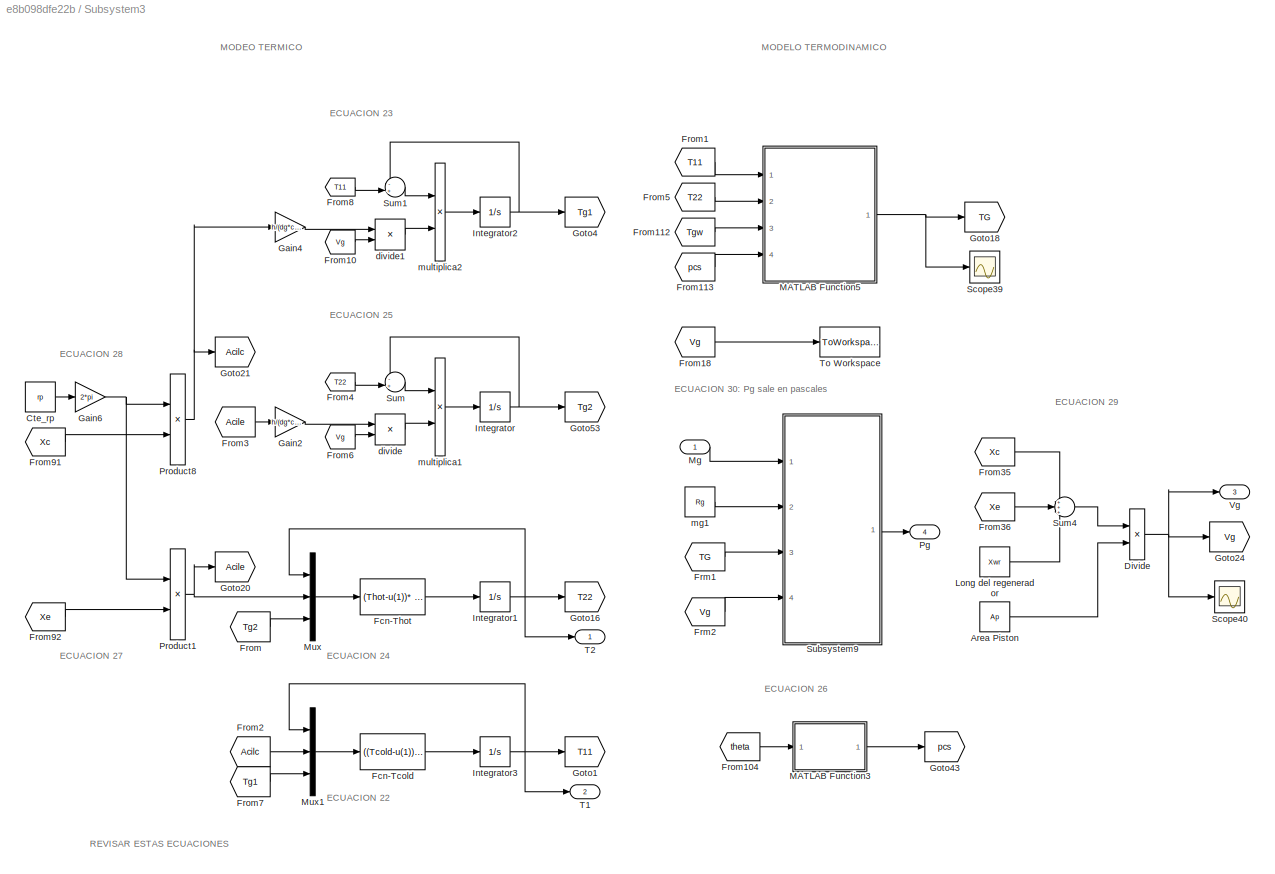
BLOCK [SubSystem] Subsystem3
  Ports = [1, 4]
  RequestExecContextInheritance = off
BLOCK [Constant] Subsystem3/Area Piston
  Value = Ap
BLOCK [Constant] Subsystem3/Cte_rp
  Value = rp
BLOCK [Product] Subsystem3/Divide
  InputSameDT = off
  Inputs = **
  OutDataTypeStr = Inherit: Inherit via internal rule
  Ports = [2, 1]
  RndMeth = Floor
  SaturateOnIntegerOverflow = off
BLOCK [Fcn] Subsystem3/Fcn-Tcold
  Expr = ((Tcold-u(1))* F1/(V1*dv)-h*u(2)/(V1*dv*cpv)*(u(1)-u(3)))
BLOCK [Fcn] Subsystem3/Fcn-Thot
  Expr = (Thot-u(1))* F2/(V2*dv)-h*u(2)/(V2*dv*cpv)*(u(1)-u(3))
BLOCK [From] Subsystem3/Frm1
  GotoTag = TG
BLOCK [From] Subsystem3/Frm2
  GotoTag = Vg
BLOCK [From] Subsystem3/From
  GotoTag = Tg2
  TagVisibility = global
BLOCK [From] Subsystem3/From1
  GotoTag = T11
  TagVisibility = global
BLOCK [From] Subsystem3/From10
  GotoTag = Vg
BLOCK [From] Subsystem3/From104
  GotoTag = theta
  TagVisibility = global
BLOCK [From] Subsystem3/From112
  GotoTag = Tgw
  TagVisibility = global
BLOCK [From] Subsystem3/From113
  GotoTag = pcs
BLOCK [From] Subsystem3/From18
  GotoTag = Vg
BLOCK [From] Subsystem3/From2
  GotoTag = Acilc
BLOCK [From] Subsystem3/From3
  GotoTag = Acile
BLOCK [From] Subsystem3/From35
  GotoTag = Xc
  TagVisibility = global
BLOCK [From] Subsystem3/From36
  GotoTag = Xe
  TagVisibility = global
BLOCK [From] Subsystem3/From4
  GotoTag = T22
  TagVisibility = global
BLOCK [From] Subsystem3/From5
  GotoTag = T22
  TagVisibility = global
BLOCK [From] Subsystem3/From6
  GotoTag = Vg
BLOCK [From] Subsystem3/From7
  GotoTag = Tg1
  TagVisibility = global
BLOCK [From] Subsystem3/From8
  GotoTag = T11
  TagVisibility = global
BLOCK [From] Subsystem3/From91
  GotoTag = Xc
  TagVisibility = global
BLOCK [From] Subsystem3/From92
  GotoTag = Xe
  TagVisibility = global
BLOCK [Gain] Subsystem3/Gain2
  Gain = h/(dg*cpg)
  OutDataTypeStr = Inherit: Inherit via internal rule
  ParamDataTypeStr = Inherit: Inherit via internal rule
  SaturateOnIntegerOverflow = off
BLOCK [Gain] Subsystem3/Gain4
  Gain = h/(dg*cpg)
  OutDataTypeStr = Inherit: Inherit via internal rule
  ParamDataTypeStr = Inherit: Inherit via internal rule
  SaturateOnIntegerOverflow = off
BLOCK [Gain] Subsystem3/Gain6
  Gain = 2*pi
  OutDataTypeStr = Inherit: Inherit via internal rule
  ParamDataTypeStr = Inherit: Inherit via internal rule
  SaturateOnIntegerOverflow = off
BLOCK [Goto] Subsystem3/Goto1
  GotoTag = T11
  TagVisibility = global
BLOCK [Goto] Subsystem3/Goto16
  GotoTag = T22
  TagVisibility = global
BLOCK [Goto] Subsystem3/Goto18
  GotoTag = TG
BLOCK [Goto] Subsystem3/Goto20
  GotoTag = Acile
BLOCK [Goto] Subsystem3/Goto21
  GotoTag = Acilc
BLOCK [Goto] Subsystem3/Goto24
  GotoTag = Vg
BLOCK [Goto] Subsystem3/Goto4
  GotoTag = Tg1
  TagVisibility = global
BLOCK [Goto] Subsystem3/Goto43
  GotoTag = pcs
BLOCK [Goto] Subsystem3/Goto53
  GotoTag = Tg2
  TagVisibility = global
BLOCK [Integrator] Subsystem3/Integrator
  Ports = [1, 1]
BLOCK [Integrator] Subsystem3/Integrator1
  Ports = [1, 1]
BLOCK [Integrator] Subsystem3/Integrator2
  Ports = [1, 1]
BLOCK [Integrator] Subsystem3/Integrator3
  Ports = [1, 1]
BLOCK [Constant] Subsystem3/Long del regenerador
  Value = Xwr
BLOCK [SubSystem] Subsystem3/MATLAB Function3
  ErrorFcn = Stateflow.Translate.translate
  PermitHierarchicalResolution = ExplicitOnly
  Ports = [1, 1]
  RequestExecContextInheritance = off
  SFBlockType = MATLAB Function
  TreatAsAtomicUnit = on
BLOCK [Demux] Subsystem3/MATLAB Function3/ Demux 
  Outputs = 1
  Ports = [1, 1]
BLOCK [S-Function] Subsystem3/MATLAB Function3/ SFunction 
  EnableBusSupport = on
  FunctionName = sf_sfun
  PortCounts = [1 2]
  Ports = [1, 2]
  SFcnIsStateOwnerBlock = off
  SFunctionDeploymentMode = off
  Tag = Stateflow S-Function ModelKevin_Felipe_01 4
BLOCK [Terminator] Subsystem3/MATLAB Function3/ Terminator 
BLOCK [Inport] Subsystem3/MATLAB Function3/tetha
  IconDisplay = Port number
BLOCK [Outport] Subsystem3/MATLAB Function3/y
  IconDisplay = Port number
BLOCK [SubSystem] Subsystem3/MATLAB Function5
  ErrorFcn = Stateflow.Translate.translate
  PermitHierarchicalResolution = ExplicitOnly
  Ports = [4, 1]
  RequestExecContextInheritance = off
  SFBlockType = MATLAB Function
  TreatAsAtomicUnit = on
BLOCK [Demux] Subsystem3/MATLAB Function5/ Demux 
  Outputs = 1
  Ports = [1, 1]
BLOCK [S-Function] Subsystem3/MATLAB Function5/ SFunction 
  EnableBusSupport = on
  FunctionName = sf_sfun
  PortCounts = [4 2]
  Ports = [4, 2]
  SFcnIsStateOwnerBlock = off
  SFunctionDeploymentMode = off
  Tag = Stateflow S-Function ModelKevin_Felipe_01 2
BLOCK [Terminator] Subsystem3/MATLAB Function5/ Terminator 
BLOCK [Inport] Subsystem3/MATLAB Function5/T11
  IconDisplay = Port number
BLOCK [Inport] Subsystem3/MATLAB Function5/T22
  IconDisplay = Port number
  Port = 2
BLOCK [Inport] Subsystem3/MATLAB Function5/Tgw
  IconDisplay = Port number
  Port = 3
BLOCK [Outport] Subsystem3/MATLAB Function5/Y
  IconDisplay = Port number
BLOCK [Inport] Subsystem3/MATLAB Function5/pcs
  IconDisplay = Port number
  Port = 4
BLOCK [Inport] Subsystem3/Mg
  IconDisplay = Port number
BLOCK [Mux] Subsystem3/Mux
  DisplayOption = bar
  Inputs = 3
  Ports = [3, 1]
BLOCK [Mux] Subsystem3/Mux1
  DisplayOption = bar
  Inputs = 3
  Ports = [3, 1]
BLOCK [Outport] Subsystem3/Pg
  IconDisplay = Port number
  Port = 4
BLOCK [Product] Subsystem3/Product1
  InputSameDT = off
  OutDataTypeStr = Inherit: Inherit via internal rule
  Ports = [2, 1]
  RndMeth = Floor
  SaturateOnIntegerOverflow = off
BLOCK [Product] Subsystem3/Product8
  InputSameDT = off
  OutDataTypeStr = Inherit: Inherit via internal rule
  Ports = [2, 1]
  RndMeth = Floor
  SaturateOnIntegerOverflow = off
BLOCK [Scope] Subsystem3/Scope39
  Floating = off
  NumInputPorts = 1
  Ports = [1]
  ScopeSpecificationString = Simulink.scopes.TimeScopeBlockCfg('CurrentConfiguration', extmgr.ConfigurationSet(extmgr.Configuration('Core','General UI',true,'FigureColor',[0.156862745098039 0.156862745098039 0.156862745098039]),extmgr.Configuration('Core','Source UI',true),extmgr.Configuration('Sources','WiredSimulink',true,'DataLoggingVariableName','ScopeData2','DataLoggingSaveFormat','StructureWithTime','DataLoggingDecimati...<+2733ch>
BLOCK [Scope] Subsystem3/Scope40
  Floating = off
  NumInputPorts = 1
  Ports = [1]
  ScopeSpecificationString = Simulink.scopes.TimeScopeBlockCfg('CurrentConfiguration', extmgr.ConfigurationSet(extmgr.Configuration('Core','General UI',true,'FigureColor',[0.156862745098039 0.156862745098039 0.156862745098039]),extmgr.Configuration('Core','Source UI',true),extmgr.Configuration('Sources','WiredSimulink',true,'DataLoggingVariableName','ScopeData1','DataLoggingSaveFormat','StructureWithTime','DataLoggingDecimati...<+2733ch>
BLOCK [SubSystem] Subsystem3/Subsystem9
  Ports = [4, 1]
  RequestExecContextInheritance = off
BLOCK [Gain] Subsystem3/Subsystem9/Gain
  OutDataTypeStr = Inherit: Inherit via internal rule
  ParamDataTypeStr = Inherit: Inherit via internal rule
  SaturateOnIntegerOverflow = off
BLOCK [Inport] Subsystem3/Subsystem9/In1
  IconDisplay = Port number
BLOCK [Inport] Subsystem3/Subsystem9/In2
  IconDisplay = Port number
  Port = 2
BLOCK [Inport] Subsystem3/Subsystem9/In3
  IconDisplay = Port number
  Port = 3
BLOCK [Inport] Subsystem3/Subsystem9/In4
  IconDisplay = Port number
  Port = 4
BLOCK [Outport] Subsystem3/Subsystem9/Out1
  IconDisplay = Port number
BLOCK [Product] Subsystem3/Subsystem9/divide
  InputSameDT = off
  Inputs = **
  OutDataTypeStr = Inherit: Inherit via internal rule
  Ports = [2, 1]
  RndMeth = Floor
  SaturateOnIntegerOverflow = off
BLOCK [Product] Subsystem3/Subsystem9/divide1
  InputSameDT = off
  Inputs = **
  OutDataTypeStr = Inherit: Inherit via internal rule
  Ports = [2, 1]
  RndMeth = Floor
  SaturateOnIntegerOverflow = off
BLOCK [Product] Subsystem3/Subsystem9/divide2
  InputSameDT = off
  Inputs = */
  OutDataTypeStr = Inherit: Inherit via internal rule
  Ports = [2, 1]
  RndMeth = Floor
  SaturateOnIntegerOverflow = off
BLOCK [Sum] Subsystem3/Sum
  IconShape = round
  InputSameDT = off
  Inputs = -+|
  OutDataTypeStr = Inherit: Inherit via internal rule
  Ports = [2, 1]
  SaturateOnIntegerOverflow = off
BLOCK [Sum] Subsystem3/Sum1
  IconShape = round
  InputSameDT = off
  Inputs = -+|
  OutDataTypeStr = Inherit: Inherit via internal rule
  Ports = [2, 1]
  SaturateOnIntegerOverflow = off
BLOCK [Sum] Subsystem3/Sum4
  IconShape = round
  InputSameDT = off
  Inputs = +++
  OutDataTypeStr = Inherit: Inherit via internal rule
  Ports = [3, 1]
  SaturateOnIntegerOverflow = off
BLOCK [Outport] Subsystem3/T1
  IconDisplay = Port number
  Port = 2
BLOCK [Outport] Subsystem3/T2
  IconDisplay = Port number
BLOCK [ToWorkspace] Subsystem3/To Workspace
  FixptAsFi = on
  MaxDataPoints = inf
  Ports = [1]
  SampleTime = -1
  Save2DSignal = 3-D array (concatenate along third dimension)
  SaveFormat = Timeseries
  VariableName = simout
BLOCK [Outport] Subsystem3/Vg
  IconDisplay = Port number
  Port = 3
BLOCK [Product] Subsystem3/divide
  InputSameDT = off
  Inputs = */
  OutDataTypeStr = Inherit: Inherit via internal rule
  Ports = [2, 1]
  RndMeth = Floor
  SaturateOnIntegerOverflow = off
BLOCK [Product] Subsystem3/divide1
  InputSameDT = off
  Inputs = */
  OutDataTypeStr = Inherit: Inherit via internal rule
  Ports = [2, 1]
  RndMeth = Floor
  SaturateOnIntegerOverflow = off
BLOCK [Constant] Subsystem3/mg1
  Value = Rg
BLOCK [Product] Subsystem3/multiplica1
  InputSameDT = off
  Inputs = **
  OutDataTypeStr = Inherit: Inherit via internal rule
  Ports = [2, 1]
  RndMeth = Floor
  SaturateOnIntegerOverflow = off
BLOCK [Product] Subsystem3/multiplica2
  InputSameDT = off
  Inputs = **
  OutDataTypeStr = Inherit: Inherit via internal rule
  Ports = [2, 1]
  RndMeth = Floor
  SaturateOnIntegerOverflow = off
BLOCK [Scope] Vg
  Floating = off
  NumInputPorts = 1
  Ports = [1]
  ScopeSpecificationString = Simulink.scopes.TimeScopeBlockCfg('CurrentConfiguration', extmgr.ConfigurationSet(extmgr.Configuration('Core','General UI',true,'FigureColor',[0.156862745098039 0.156862745098039 0.156862745098039]),extmgr.Configuration('Core','Source UI',true),extmgr.Configuration('Sources','WiredSimulink',true,'DataLoggingVariableName','ScopeData2','DataLoggingSaveFormat','StructureWithTime','DataLoggingDecimati...<+2711ch>
BLOCK [Scope] Vg1
  Floating = off
  NumInputPorts = 1
  Ports = [1]
  ScopeSpecificationString = Simulink.scopes.TimeScopeBlockCfg('CurrentConfiguration', extmgr.ConfigurationSet(extmgr.Configuration('Core','General UI',true,'FigureColor',[0.156862745098039 0.156862745098039 0.156862745098039]),extmgr.Configuration('Core','Source UI',true),extmgr.Configuration('Sources','WiredSimulink',true,'DataLoggingVariableName','ScopeData3','DataLoggingSaveFormat','StructureWithTime','DataLoggingDecimati...<+2711ch>
BLOCK [Reference] XY Graph  REF=simulink/Sinks/XY Graph
  Ports = [2]
  SourceBlock = simulink/Sinks/XY Graph
  SourceProductBaseCode = SL
  SourceProductName = Simulink
  SourceType = XY scope.
BLOCK [Constant] mg
  Value = 0.0002
ANNOTATION (root): Para el lazo de control se asume que el gas, el cual puede ser aire o nitrogeno, está en un cilindro de un volumen determinado y a una temperatura estable. Si se controla la presión de dicho tanque, se tiene una variación en la masa del gas que se lleva al motor. A menor presión en el tanque, mayor masa de gas en el motor y a mayor presión en el tanque menos masa de gas en el motor. El control es ...<+114ch>
ANNOTATION (root): MODELO DEL REGENERADOR
ANNOTATION (root): MODELO MECANICO
ANNOTATION (root): MODELO TERMICO
ANNOTATION Modelo del Regenerador: ECUACION 1, solución explicita de la ecuación en derivadas parciales, en una sola dirección (x).
ANNOTATION Modelo del Regenerador: ECUACION 2: Calcúla la temperatura del gas en los cuatro puntos del regenerador.
ANNOTATION Modelo del Regenerador: Dado que el gas esta pasando por cada uno de los puntos del regenerador esta ecuación, nos da la temperatura del gas deacuerdo a su posiscion. Xg es la posición del centro de masa del gas en el regenerador.
ANNOTATION Modelo del Regenerador: Este bloque funciona como un multiplexor que selecciona la temperatura del gas según la posición del centro de masa del gas en el regenerador.
ANNOTATION Modelo del Regenerador/Subsystem1: Tg
ANNOTATION Modelo del Regenerador/Subsystem1: dtg/dt
ANNOTATION Modelo del Regenerador/Subsystem2: Tg
ANNOTATION Modelo del Regenerador/Subsystem2: dtg/dt
ANNOTATION Modelo del Regenerador/Subsystem3: Tg
ANNOTATION Modelo del Regenerador/Subsystem3: dtg/dt
ANNOTATION Modelo del Regenerador/Subsystem4: Tg
ANNOTATION Modelo del Regenerador/Subsystem4: dtg/dt
ANNOTATION Subsystem: ECUACION 7
ANNOTATION Subsystem: ecuacion 21
ANNOTATION Subsystem: ECUACION 10: Xe se refiere a Carrera de expansión
ANNOTATION Subsystem: ECUACION 11: Xc se refiere a carrera de compresión
ANNOTATION Subsystem: ECUACION 12: Torque de expansión
ANNOTATION Subsystem: ECUACION 13: Torque de compresión
ANNOTATION Subsystem: ECUACION 14: Aqui Patm está en pascales.
ANNOTATION Subsystem: ECUACION 6
ANNOTATION Subsystem: ECUACION 8
ANNOTATION Subsystem: ECUACION 9
ANNOTATION Subsystem: ECUACION18
ANNOTATION Subsystem1: ECUACIONES 15, 16 y 17
ANNOTATION Subsystem1: TT: Torque total Alfa: Aceleración
ANNOTATION Subsystem3: ECUACION 29
ANNOTATION Subsystem3: ECUACION 22
ANNOTATION Subsystem3: ECUACION 24
ANNOTATION Subsystem3: ECUACION 27
ANNOTATION Subsystem3: ECUACION 28
ANNOTATION Subsystem3: REVISAR ESTAS ECUACIONES
ANNOTATION Subsystem3: ECUACION 23
ANNOTATION Subsystem3: ECUACION 25
ANNOTATION Subsystem3: ECUACION 26
ANNOTATION Subsystem3: ECUACION 30: Pg sale en pascales
ANNOTATION Subsystem3: MODELO TERMODINAMICO
ANNOTATION Subsystem3: MODEO TERMICO
LINE Clock:1 -> Goto:1
NET Frm3:1 -> Scope77:1, XY Graph:1
LINE Frm4:1 -> Gain:1
LINE From108:1 -> Subsystem:2
LINE From10:1 -> Subsystem1:4
LINE From128:1 -> Modelo del Regenerador:1
LINE From134:1 -> Modelo del Regenerador:2
LINE From143:1 -> Subsystem1:1
LINE From144:1 -> Subsystem1:2
LINE From1:1 -> Subsystem:3
LINE From2:1 -> Scope1:1
LINE From31:1 -> Subsystem:1
LINE From3:1 -> Vg1:1
LINE From40:1 -> Subsystem3:1
LINE From4:1 -> Vg:1
LINE From6:1 -> Modelo del Regenerador:3
LINE From7:1 -> Modelo del Regenerador:4
LINE From8:1 -> Subsystem1:3
LINE From:1 -> Scope1:2
NET Gain:1 -> Scope77:2, XY Graph:2
NET Modelo del Regenerador/(h*A)//(dg*cpg):1 -> Modelo del Regenerador/Subsystem1:3, Modelo del Regenerador/Subsystem2:3, Modelo del Regenerador/Subsystem3:3, Modelo del Regenerador/Subsystem4:3
NET Modelo del Regenerador/From11:1 -> Modelo del Regenerador/MATLAB Function1:3, Modelo del Regenerador/MATLAB Function2:3, Modelo del Regenerador/MATLAB Function4:3, Modelo del Regenerador/MATLAB Function7:3
LINE Modelo del Regenerador/From127:1 -> Modelo del Regenerador/Subsystem2:1
LINE Modelo del Regenerador/From130:1 -> Modelo del Regenerador/Subsystem3:1
LINE Modelo del Regenerador/From131:1 -> Modelo del Regenerador/MATLAB Function6:1
LINE Modelo del Regenerador/From132:1 -> Modelo del Regenerador/MATLAB Function6:2
LINE Modelo del Regenerador/From133:1 -> Modelo del Regenerador/MATLAB Function6:3
LINE Modelo del Regenerador/From140:1 -> Modelo del Regenerador/Subsystem4:1
LINE Modelo del Regenerador/From141:1 -> Modelo del Regenerador/MATLAB Function6:4
LINE Modelo del Regenerador/From15:1 -> Modelo del Regenerador/Subsystem1:1
NET Modelo del Regenerador/MATLAB Function1:1 -> Modelo del Regenerador/Goto49:1, Modelo del Regenerador/Mux:1
NET Modelo del Regenerador/MATLAB Function2:1 -> Modelo del Regenerador/Goto5:1, Modelo del Regenerador/Mux:2
NET Modelo del Regenerador/MATLAB Function4:1 -> Modelo del Regenerador/Goto54:1, Modelo del Regenerador/Mux:3
NET Modelo del Regenerador/MATLAB Function6:1 -> Modelo del Regenerador/Scope87:1, Modelo del Regenerador/Tgw:1
NET Modelo del Regenerador/MATLAB Function7:1 -> Modelo del Regenerador/Goto58:1, Modelo del Regenerador/Mux:4
LINE Modelo del Regenerador/Mux1:1 -> Modelo del Regenerador/Tgn:1
LINE Modelo del Regenerador/Mux:1 -> Modelo del Regenerador/TWn:1
LINE Modelo del Regenerador/Subsystem1/Cte:1 -> Modelo del Regenerador/Subsystem1/Divide2:2
LINE Modelo del Regenerador/Subsystem1/Divide2:1 -> Modelo del Regenerador/Subsystem1/Divide3:1
LINE Modelo del Regenerador/Subsystem1/Divide3:1 -> Modelo del Regenerador/Subsystem1/Integrator:1
NET Modelo del Regenerador/Subsystem1/Integrator:1 -> Modelo del Regenerador/Subsystem1/Sum1:2, Modelo del Regenerador/Subsystem1/Tg1:1
LINE Modelo del Regenerador/Subsystem1/Sum1:1 -> Modelo del Regenerador/Subsystem1/Divide3:2
LINE Modelo del Regenerador/Subsystem1/TW1:1 -> Modelo del Regenerador/Subsystem1/Sum1:1
LINE Modelo del Regenerador/Subsystem1/Vg:1 -> Modelo del Regenerador/Subsystem1/Divide2:1
NET Modelo del Regenerador/Subsystem1:1 -> Modelo del Regenerador/Goto9:1, Modelo del Regenerador/Mux1:1
LINE Modelo del Regenerador/Subsystem2/Cte:1 -> Modelo del Regenerador/Subsystem2/Divide2:2
LINE Modelo del Regenerador/Subsystem2/Divide2:1 -> Modelo del Regenerador/Subsystem2/Divide3:1
LINE Modelo del Regenerador/Subsystem2/Divide3:1 -> Modelo del Regenerador/Subsystem2/Integrator:1
NET Modelo del Regenerador/Subsystem2/Integrator:1 -> Modelo del Regenerador/Subsystem2/Sum1:2, Modelo del Regenerador/Subsystem2/Tg2:1
LINE Modelo del Regenerador/Subsystem2/Sum1:1 -> Modelo del Regenerador/Subsystem2/Divide3:2
LINE Modelo del Regenerador/Subsystem2/TW2:1 -> Modelo del Regenerador/Subsystem2/Sum1:1
LINE Modelo del Regenerador/Subsystem2/Vg:1 -> Modelo del Regenerador/Subsystem2/Divide2:1
NET Modelo del Regenerador/Subsystem2:1 -> Modelo del Regenerador/Goto55:1, Modelo del Regenerador/Mux1:2
LINE Modelo del Regenerador/Subsystem3/Cte:1 -> Modelo del Regenerador/Subsystem3/Divide2:2
LINE Modelo del Regenerador/Subsystem3/Divide2:1 -> Modelo del Regenerador/Subsystem3/Divide3:1
LINE Modelo del Regenerador/Subsystem3/Divide3:1 -> Modelo del Regenerador/Subsystem3/Integrator:1
NET Modelo del Regenerador/Subsystem3/Integrator:1 -> Modelo del Regenerador/Subsystem3/Sum1:2, Modelo del Regenerador/Subsystem3/Tg3:1
LINE Modelo del Regenerador/Subsystem3/Sum1:1 -> Modelo del Regenerador/Subsystem3/Divide3:2
LINE Modelo del Regenerador/Subsystem3/TW3:1 -> Modelo del Regenerador/Subsystem3/Sum1:1
LINE Modelo del Regenerador/Subsystem3/Vg:1 -> Modelo del Regenerador/Subsystem3/Divide2:1
NET Modelo del Regenerador/Subsystem3:1 -> Modelo del Regenerador/Goto56:1, Modelo del Regenerador/Mux1:3
LINE Modelo del Regenerador/Subsystem4/Cte:1 -> Modelo del Regenerador/Subsystem4/Divide2:2
LINE Modelo del Regenerador/Subsystem4/Divide2:1 -> Modelo del Regenerador/Subsystem4/Divide3:1
LINE Modelo del Regenerador/Subsystem4/Divide3:1 -> Modelo del Regenerador/Subsystem4/Integrator:1
NET Modelo del Regenerador/Subsystem4/Integrator:1 -> Modelo del Regenerador/Subsystem4/Sum1:2, Modelo del Regenerador/Subsystem4/Tg4:1
LINE Modelo del Regenerador/Subsystem4/Sum1:1 -> Modelo del Regenerador/Subsystem4/Divide3:2
LINE Modelo del Regenerador/Subsystem4/TW4:1 -> Modelo del Regenerador/Subsystem4/Sum1:1
LINE Modelo del Regenerador/Subsystem4/Vg:1 -> Modelo del Regenerador/Subsystem4/Divide2:1
NET Modelo del Regenerador/Subsystem4:1 -> Modelo del Regenerador/Goto59:1, Modelo del Regenerador/Mux1:4
NET Modelo del Regenerador/T11:1 -> Modelo del Regenerador/MATLAB Function1:1, Modelo del Regenerador/MATLAB Function2:1, Modelo del Regenerador/MATLAB Function4:1, Modelo del Regenerador/MATLAB Function7:1
NET Modelo del Regenerador/T22:1 -> Modelo del Regenerador/MATLAB Function1:2, Modelo del Regenerador/MATLAB Function2:2, Modelo del Regenerador/MATLAB Function4:2, Modelo del Regenerador/MATLAB Function7:2
NET Modelo del Regenerador/Vg:1 -> Modelo del Regenerador/Subsystem1:2, Modelo del Regenerador/Subsystem2:2, Modelo del Regenerador/Subsystem3:2, Modelo del Regenerador/Subsystem4:2
LINE Modelo del Regenerador/Xg:1 -> Modelo del Regenerador/MATLAB Function6:5
LINE Modelo del Regenerador:1 -> Goto57:1
LINE Signal Builder:1 -> Par de carga:1
LINE Subsystem/Ang_Fi:1 -> Subsystem/Goto42:1
LINE Subsystem/Area Piston:1 -> Subsystem/Subsystem12:3
LINE Subsystem/Cal Ce1:1 -> Subsystem/Goto2:1
LINE Subsystem/Cal Ce:1 -> Subsystem/Goto41:1
LINE Subsystem/Cal Fi_c:1 -> Subsystem/Goto1:1
LINE Subsystem/Cal Fi_e:1 -> Subsystem/Goto40:1
LINE Subsystem/Cal X_c:1 -> Subsystem/Goto9:1
LINE Subsystem/Cal X_e:1 -> Subsystem/Goto5:1
LINE Subsystem/Cal tc:1 -> Subsystem/tc:1
LINE Subsystem/Cal te:1 -> Subsystem/te:1
LINE Subsystem/Coeff Friccion:1 -> Subsystem/Divide12:2
LINE Subsystem/Constant1:1 -> Subsystem/Goto39:1
LINE Subsystem/Constant:1 -> Subsystem/Goto36:1
LINE Subsystem/Divide12:1 -> Subsystem/tf:1
LINE Subsystem/From10:1 -> Subsystem/Cal Ce:1
LINE Subsystem/From11:1 -> Subsystem/Cal Ce:2
LINE Subsystem/From12:1 -> Subsystem/Cal Ce:4
LINE Subsystem/From14:1 -> Subsystem/Cal Ce1:3
LINE Subsystem/From15:1 -> Subsystem/Cal Ce1:1
LINE Subsystem/From16:1 -> Subsystem/Cal Ce1:2
LINE Subsystem/From17:1 -> Subsystem/Cal Ce1:4
LINE Subsystem/From1:1 -> Subsystem/Gain6:1
LINE Subsystem/From22:1 -> Subsystem/Cal Ce1:5
LINE Subsystem/From27:1 -> Subsystem/Sum1:4
LINE Subsystem/From28:1 -> Subsystem/Sum1:3
LINE Subsystem/From30:1 -> Subsystem/Memory:1
LINE Subsystem/From34:1 -> Subsystem/Memory1:1
LINE Subsystem/From39:1 -> Subsystem/Cal X_c:1
LINE Subsystem/From42:1 -> Subsystem/Cal X_c:2
NET Subsystem/From43:1 -> Subsystem/Cal Fi_c:2, Subsystem/Cal Fi_e:2, Subsystem/Cal X_e:1
LINE Subsystem/From44:1 -> Subsystem/Cal te:4
LINE Subsystem/From45:1 -> Subsystem/Cal te:1
LINE Subsystem/From46:1 -> Subsystem/Cal te:2
LINE Subsystem/From47:1 -> Subsystem/Cal te:3
LINE Subsystem/From48:1 -> Subsystem/Cal te:5
LINE Subsystem/From49:1 -> Subsystem/Cal tc:5
LINE Subsystem/From50:1 -> Subsystem/Cal tc:1
LINE Subsystem/From53:1 -> Subsystem/Cal tc:3
NET Subsystem/From56:1 -> Subsystem/Cal Fi_c:3, Subsystem/Cal Fi_e:3, Subsystem/Cal X_e:2
LINE Subsystem/From62:1 -> Subsystem/Cal tc:4
LINE Subsystem/From68:1 -> Subsystem/Cal tc:6
LINE Subsystem/From73:1 -> Subsystem/Cal tc:2
LINE Subsystem/From83:1 -> Subsystem/Scope10:2
LINE Subsystem/From85:1 -> Subsystem/Scope10:1
LINE Subsystem/From8:1 -> Subsystem/Cal Fi_c:4
LINE Subsystem/From:1 -> Subsystem/Cal Ce:3
NET Subsystem/Gain1:1 -> Subsystem/Scope48:1, Subsystem/Xg:1
LINE Subsystem/Gain6:1 -> Subsystem/Sum1:1
LINE Subsystem/Long del regenerador:1 -> Subsystem/Sum1:2
LINE Subsystem/Memory1:1 -> Subsystem/Cal X_c:3
LINE Subsystem/Memory:1 -> Subsystem/Cal X_e:3
LINE Subsystem/Pg:1 -> Subsystem/Subsystem12:1
LINE Subsystem/Pres Atomosferica:1 -> Subsystem/Subsystem12:2
LINE Subsystem/Subsystem12/Ap:1 -> Subsystem/Subsystem12/Divide16:2
LINE Subsystem/Subsystem12/Divide16:1 -> Subsystem/Subsystem12/Fg:1
LINE Subsystem/Subsystem12/Gain1:1 -> Subsystem/Subsystem12/Sum:2
LINE Subsystem/Subsystem12/Gain:1 -> Subsystem/Subsystem12/Sum:1
LINE Subsystem/Subsystem12/Patm:1 -> Subsystem/Subsystem12/Gain1:1
LINE Subsystem/Subsystem12/Pg:1 -> Subsystem/Subsystem12/Gain:1
LINE Subsystem/Subsystem12/Sum:1 -> Subsystem/Subsystem12/Divide16:1
NET Subsystem/Subsystem12:1 -> Subsystem/Goto48:1, Subsystem/Scope52:1
LINE Subsystem/Sum1:1 -> Subsystem/Gain1:1
NET Subsystem/Teta:1 -> Subsystem/Cal Fi_c:1, Subsystem/Cal Fi_e:1, Subsystem/Goto:1
LINE Subsystem/W:1 -> Subsystem/Divide12:1
NET Subsystem1/Gain:1 -> Subsystem1/Alfa:1, Subsystem1/Integrator2:1
NET Subsystem1/Integrator2:1 -> Subsystem1/Integrator3:1, Subsystem1/Vel:1
LINE Subsystem1/Integrator3:1 -> Subsystem1/Teta:1
LINE Subsystem1/Step:1 -> Subsystem1/Sum20:3
LINE Subsystem1/Sum1:1 -> Subsystem1/Gain:1
NET Subsystem1/Sum20:1 -> Subsystem1/Sum1:1, Subsystem1/TT:1
LINE Subsystem1/tc:1 -> Subsystem1/Sum20:2
LINE Subsystem1/te:1 -> Subsystem1/Sum20:1
LINE Subsystem1/tf:1 -> Subsystem1/Sum20:4
LINE Subsystem1/tq:1 -> Subsystem1/Sum1:2
LINE Subsystem1:1 -> Goto37:1
LINE Subsystem1:2 -> Goto35:1
LINE Subsystem1:3 -> Goto10:1
LINE Subsystem1:4 -> Goto1:1
LINE Subsystem3/Area Piston:1 -> Subsystem3/Divide:2
LINE Subsystem3/Cte_rp:1 -> Subsystem3/Gain6:1
NET Subsystem3/Divide:1 -> Subsystem3/Goto24:1, Subsystem3/Scope40:1, Subsystem3/Vg:1
LINE Subsystem3/Fcn-Tcold:1 -> Subsystem3/Integrator3:1
LINE Subsystem3/Fcn-Thot:1 -> Subsystem3/Integrator1:1
LINE Subsystem3/Frm1:1 -> Subsystem3/Subsystem9:3
LINE Subsystem3/Frm2:1 -> Subsystem3/Subsystem9:4
LINE Subsystem3/From104:1 -> Subsystem3/MATLAB Function3:1
LINE Subsystem3/From10:1 -> Subsystem3/divide1:2
LINE Subsystem3/From112:1 -> Subsystem3/MATLAB Function5:3
LINE Subsystem3/From113:1 -> Subsystem3/MATLAB Function5:4
LINE Subsystem3/From18:1 -> Subsystem3/To Workspace:1
LINE Subsystem3/From1:1 -> Subsystem3/MATLAB Function5:1
LINE Subsystem3/From2:1 -> Subsystem3/Mux1:2
LINE Subsystem3/From35:1 -> Subsystem3/Sum4:1
LINE Subsystem3/From36:1 -> Subsystem3/Sum4:2
LINE Subsystem3/From3:1 -> Subsystem3/Gain2:1
LINE Subsystem3/From4:1 -> Subsystem3/Sum:2
LINE Subsystem3/From5:1 -> Subsystem3/MATLAB Function5:2
LINE Subsystem3/From6:1 -> Subsystem3/divide:2
LINE Subsystem3/From7:1 -> Subsystem3/Mux1:3
LINE Subsystem3/From8:1 -> Subsystem3/Sum1:2
LINE Subsystem3/From91:1 -> Subsystem3/Product8:2
LINE Subsystem3/From92:1 -> Subsystem3/Product1:2
LINE Subsystem3/From:1 -> Subsystem3/Mux:3
LINE Subsystem3/Gain2:1 -> Subsystem3/divide:1
LINE Subsystem3/Gain4:1 -> Subsystem3/divide1:1
NET Subsystem3/Gain6:1 -> Subsystem3/Product1:1, Subsystem3/Product8:1
NET Subsystem3/Integrator1:1 -> Subsystem3/Goto16:1, Subsystem3/Mux:1, Subsystem3/T2:1
NET Subsystem3/Integrator2:1 -> Subsystem3/Goto4:1, Subsystem3/Sum1:1
NET Subsystem3/Integrator3:1 -> Subsystem3/Goto1:1, Subsystem3/Mux1:1, Subsystem3/T1:1
NET Subsystem3/Integrator:1 -> Subsystem3/Goto53:1, Subsystem3/Sum:1
LINE Subsystem3/Long del regenerador:1 -> Subsystem3/Sum4:3
LINE Subsystem3/MATLAB Function3:1 -> Subsystem3/Goto43:1
NET Subsystem3/MATLAB Function5:1 -> Subsystem3/Goto18:1, Subsystem3/Scope39:1
LINE Subsystem3/Mg:1 -> Subsystem3/Subsystem9:1
LINE Subsystem3/Mux1:1 -> Subsystem3/Fcn-Tcold:1
LINE Subsystem3/Mux:1 -> Subsystem3/Fcn-Thot:1
NET Subsystem3/Product1:1 -> Subsystem3/Goto20:1, Subsystem3/Mux:2
NET Subsystem3/Product8:1 -> Subsystem3/Gain4:1, Subsystem3/Goto21:1
LINE Subsystem3/Subsystem9/Gain:1 -> Subsystem3/Subsystem9/Out1:1
LINE Subsystem3/Subsystem9/In1:1 -> Subsystem3/Subsystem9/divide:1
LINE Subsystem3/Subsystem9/In2:1 -> Subsystem3/Subsystem9/divide:2
LINE Subsystem3/Subsystem9/In3:1 -> Subsystem3/Subsystem9/divide1:2
LINE Subsystem3/Subsystem9/In4:1 -> Subsystem3/Subsystem9/divide2:2
LINE Subsystem3/Subsystem9/divide1:1 -> Subsystem3/Subsystem9/divide2:1
LINE Subsystem3/Subsystem9/divide2:1 -> Subsystem3/Subsystem9/Gain:1
LINE Subsystem3/Subsystem9/divide:1 -> Subsystem3/Subsystem9/divide1:1
LINE Subsystem3/Subsystem9:1 -> Subsystem3/Pg:1
LINE Subsystem3/Sum1:1 -> Subsystem3/multiplica2:1
LINE Subsystem3/Sum4:1 -> Subsystem3/Divide:1
LINE Subsystem3/Sum:1 -> Subsystem3/multiplica1:1
LINE Subsystem3/divide1:1 -> Subsystem3/multiplica2:2
LINE Subsystem3/divide:1 -> Subsystem3/multiplica1:2
LINE Subsystem3/mg1:1 -> Subsystem3/Subsystem9:2
LINE Subsystem3/multiplica1:1 -> Subsystem3/Integrator:1
LINE Subsystem3/multiplica2:1 -> Subsystem3/Integrator2:1
LINE Subsystem3:1 -> Goto6:1
LINE Subsystem3:2 -> Goto5:1
LINE Subsystem3:3 -> Goto7:1
LINE Subsystem3:4 -> Goto8:1
LINE Subsystem:1 -> Goto11:1
LINE Subsystem:2 -> Goto19:1
LINE Subsystem:3 -> Goto34:1
LINE Subsystem:4 -> Goto2:1
LINE mg:1 -> Goto3:1
note: NET lines group one-source signal fan-out (src -> all destinations, sorted); 1:1 wires keep LINE
CHART Modelo del Regenerador/MATLAB Function1 states=1 transitions=1
  STATE_LABEL 'eML_blk_kernel()'
  STATE_LABEL "SCRIPT:\nfunction y1 = fcn(T1,T2,t)\n\n% Initialize number of nodes and constants\nN = 45;\nku = 15; % AISI 304 con ductividad termimica\nrho = 7830; % AISI 304 densidad\ncp = 500; % AISI 304 calor espe\nL = 0.04;\nq = 0;\nh = L/(N-1); %delta de x\nalfa=ku/(cp*rho);\ndt = (0.5*(h^2))/alfa;\nt = 20;\nTi = 300;\nT0 = T2;\nTL = T1;\nr = (ku*dt)/(rho*cp*h^2);\nif r>0.5\n error('disminuya el intervalo de tiempo dt')\nend\n...<+295ch>"
CHART Subsystem3/MATLAB Function5 states=1 transitions=1
  STATE_LABEL 'eML_blk_kernel()'
  STATE_LABEL 'SCRIPT:\nfunction Y=fcn(T11,T22,Tgw,pcs)\nu=0;\nif pcs==1;\n    u=Tgw;\nend \n\nif pcs==2;\n    u=T22;\nend \n\nif pcs==3;\n    u=Tgw;\nend \n\nif pcs==4;\n    u=T11;\nend \n\nY=u;\n\n% pcs 1 calentamiento = Tgw\n% pcs 2 expansion = Tge\n% pcs 3 enfriamiento = Tgw\n% pcs 4 compresion = Tgc'
CHART Modelo del Regenerador/MATLAB Function2 states=1 transitions=1
  STATE_LABEL 'eML_blk_kernel()'
  STATE_LABEL "SCRIPT:\nfunction y2 = fcn(T1,T2,t)\n\n% Initialize number of nodes and constants\nN = 45;\nku = 15; % AISI 304 con ductividad termimica\nrho = 7830; % AISI 304 densidad\ncp = 500; % AISI 304 calor espe\nL = 0.04;\nq = 0;\nh = L/(N-1); %delta de x\nalfa=ku/(cp*rho);\ndt = (0.5*(h^2))/alfa;\nt = 20;\nTi = 300;\nT0 = T2;\nTL = T1;\nr = (ku*dt)/(rho*cp*h^2);\nif r>0.5\n error('disminuya el intervalo de tiempo dt')\nend\n...<+295ch>"
CHART Subsystem3/MATLAB Function3 states=1 transitions=1
  STATE_LABEL 'eML_blk_kernel()'
  STATE_LABEL 'SCRIPT:\nfunction y = fcn(tetha)\n\n\ny=floor(4*((tetha/(2*3.1426))-floor(tetha/(2*3.1426))))+1;'
CHART Modelo del Regenerador/MATLAB Function4 states=1 transitions=1
  STATE_LABEL 'eML_blk_kernel()'
  STATE_LABEL "SCRIPT:\nfunction y3 = fcn(T1,T2,t)\n\n% Initialize number of nodes and constants\nN = 45;\nku = 15; % AISI 304 con ductividad termimica\nrho = 7830; % AISI 304 densidad\ncp = 500; % AISI 304 calor espe\nL = 0.04;\nq = 0;\nh = L/(N-1); %delta de x\nalfa=ku/(cp*rho);\ndt = (0.5*(h^2))/alfa;\nt = 20;\nTi = 300;\nT0 = T2;\nTL = T1;\nr = (ku*dt)/(rho*cp*h^2);\nif r>0.5\n error('disminuya el intervalo de tiempo dt')\nend\n...<+296ch>"
CHART Modelo del Regenerador/MATLAB Function6 states=1 transitions=1
  STATE_LABEL 'eML_blk_kernel()'
  STATE_LABEL 'SCRIPT:\nfunction Twg = fcn(T1,T2,T3,T4,Xg)\nu=0;\na=0.0337;\nb=0.040;\nc=0.0482;\nd=0.0555;\ne=0.0639;\n\nif  (a<Xg) && (Xg<=b)\n    \nu=T1;\nend\n\nif (b<Xg) && (Xg<=c)\n    \n    u=T2;\nend\n\nif  (c<Xg) && (Xg<=d)\n    \n    u=T3;\nend\nif (d<Xg) && (Xg<=e)\n    \n    u=T4;\nend\n\nTwg=u;\n'
CHART Modelo del Regenerador/MATLAB Function7 states=1 transitions=1
  STATE_LABEL 'eML_blk_kernel()'
  STATE_LABEL "SCRIPT:\nfunction y4 = fcn(T1,T2,t)\n\n% Initialize number of nodes and constants\nN = 45;\nku = 15; % AISI 304 con ductividad termimica\nrho = 7830; % AISI 304 densidad\ncp = 500; % AISI 304 calor espe\nL = 0.04;\nq = 0;\nh = L/(N-1); %delta de x\nalfa=ku/(cp*rho);\ndt = (0.5*(h^2))/alfa;\nt = 20;\nTi = 300;\nT0 = T2;\nTL = T1;\nr = (ku*dt)/(rho*cp*h^2);\nif r>0.5\n error('disminuya el intervalo de tiempo dt')\nend\n...<+295ch>"
CHART Subsystem/Cal Fi_e states=1 transitions=1
  STATE_LABEL 'eML_blk_kernel()'
  STATE_LABEL 'SCRIPT:\nfunction Fi_e = fcn(Teta,r,l)\nFi_e = asin(r*sin(Teta)/l);\nend'
CHART Subsystem/Cal Fi_c states=1 transitions=1
  STATE_LABEL 'eML_blk_kernel()'
  STATE_LABEL 'SCRIPT:\nfunction Fi_c = fcn(Teta,r,l,Fi)\nFi_c = asin(r*sin(Teta-Fi)/l);\nend\n'
CHART Subsystem/Cal Ce states=1 transitions=1
  STATE_LABEL 'eML_blk_kernel()'
  STATE_LABEL 'SCRIPT:\nfunction C_e = fcn(Teta,r,Fi_e,l)\nC_e = r*cos(Teta)+l*cos(Fi_e);\nend'
CHART Subsystem/Cal Ce1 states=1 transitions=1
  STATE_LABEL 'eML_blk_kernel()'
  STATE_LABEL 'SCRIPT:\nfunction C_c = fcn(Teta,r,Fi_c,l,Fi)\nC_c = r*cos(Teta-Fi)+l*cos(Fi_c);\nend'
CHART Subsystem/Cal X_e states=1 transitions=1
  STATE_LABEL 'eML_blk_kernel()'
  STATE_LABEL 'SCRIPT:\nfunction Xe = fcn(r,l,Ce)\nXe = r+l-Ce;\nend'
CHART Subsystem/Cal X_c states=1 transitions=1
  STATE_LABEL 'eML_blk_kernel()'
  STATE_LABEL 'SCRIPT:\nfunction Xc = fcn(r,l,Cc)\nXc = r+l-Cc;\nend'
CHART Subsystem/Cal te states=1 transitions=1
  STATE_LABEL 'eML_blk_kernel()'
  STATE_LABEL 'SCRIPT:\nfunction te = fcn(Teta,r,l,Fi_e,Fg)\nte = Fg*tan(Fi_e)*(l-(r^2/(4*l))+r*cos(Teta)+r^2/(4*l)*cos(2*Teta));\nend'
CHART Subsystem/Cal tc states=1 transitions=1
  STATE_LABEL 'eML_blk_kernel()'
  STATE_LABEL 'SCRIPT:\nfunction tc = fcn(Teta,Fi,r,l,Fi_c,Fg)\ntc = Fg*tan(Fi_c)*(l-(r^2/(4*l))+r*cos(Teta-Fi)+r^2/(4*l)*cos(2*Teta-2*Fi));\nend'
